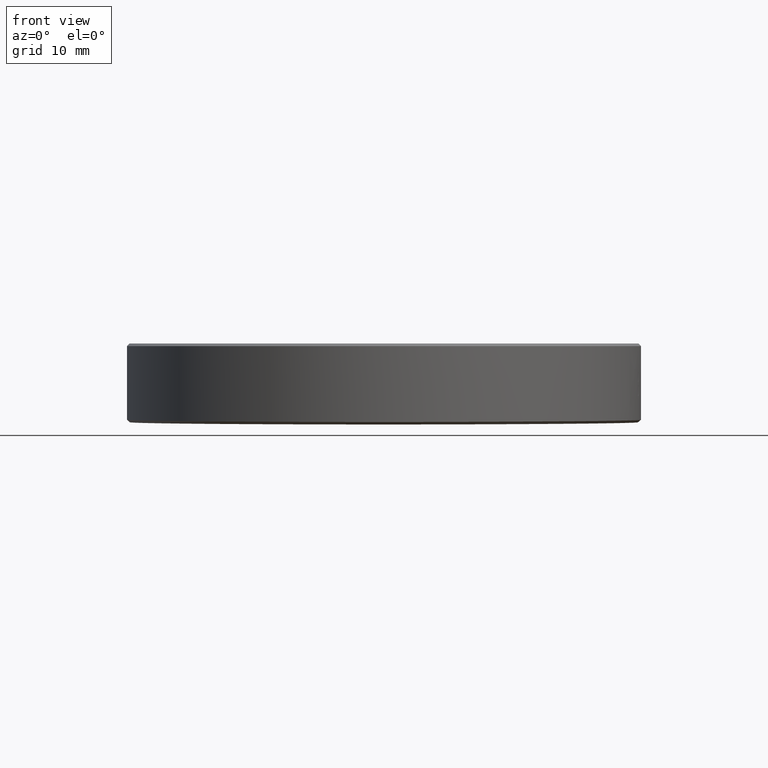
[diagram: clean part render]
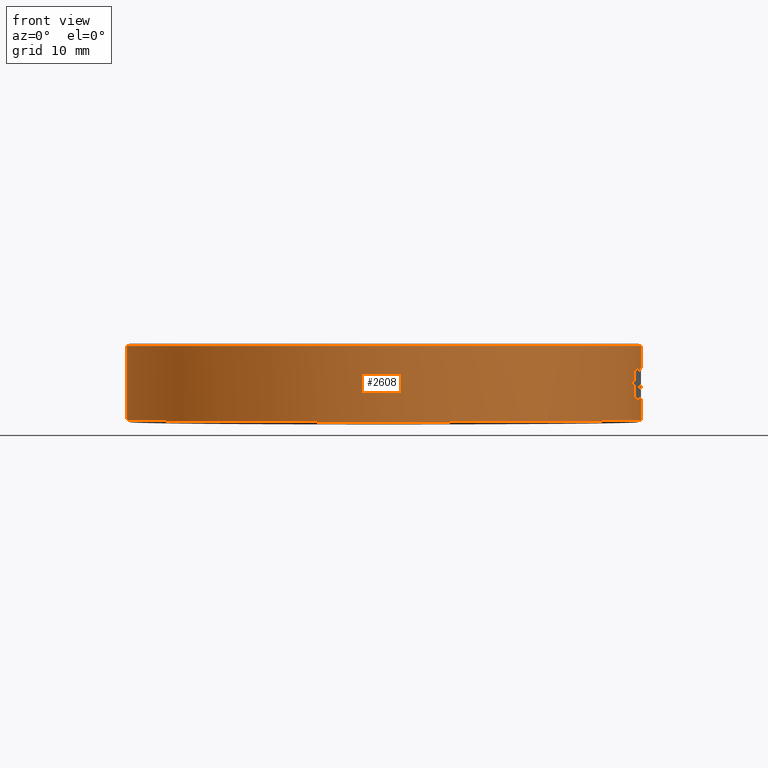
[diagram: same view with one face highlighted and labeled with its STEP entity id]
A machine part, front view. The second image highlights one B-rep face of the part: STEP entity #2608.
In plain terms, the highlighted cylindrical surface (partial cylindrical patch) has radius 25.4 mm, axis along (-0, -0, -1).
Its self-contained STEP definition (entity closure, byte-faithful):
#1 = CARTESIAN_POINT ( 'NONE',  ( 25.16972420791624300, -3.413521966920785900, -1.499134090956274000 ) ) ;
#2 = CARTESIAN_POINT ( 'NONE',  ( 25.17845359468357800, -3.347802632927792600, -1.496825502805402500 ) ) ;
#8 = CIRCLE ( 'NONE', #10, 25.40000000000000200 ) ;
#10 = AXIS2_PLACEMENT_3D ( 'NONE', #2665, #2668, #2667 ) ;
#11 = CARTESIAN_POINT ( 'NONE',  ( 25.18508550856175500, -3.297192281566599700, -1.492839781343766800 ) ) ;
#125 = CARTESIAN_POINT ( 'NONE',  ( 25.18584672184366000, -3.291374226179209400, -1.492368658260956100 ) ) ;
#200 = VERTEX_POINT ( 'NONE', #426 ) ;
#207 = EDGE_CURVE ( 'NONE', #2336, #200, #325, .T. ) ;
#265 = CARTESIAN_POINT ( 'NONE',  ( 25.39659566624369400, -0.4158468051243345800, -0.2638221153846223600 ) ) ;
#299 = B_SPLINE_CURVE_WITH_KNOTS ( 'NONE', 3,
 ( #460, #459, #458, #457, #456, #455, #454, #453, #452, #451, #450, #449, #448, #447, #446, #445, #444, #443, #442, #441, #440, #439, #438, #437, #436, #435, #434, #433, #432, #431, #430, #429, #489 ),
 .UNSPECIFIED., .F., .F.,
 ( 4, 1, 1, 2, 2, 1, 2, 2, 2, 2, 2, 2, 2, 2, 1, 1, 2, 2, 4 ),
 ( 0.0000000000000000000, 0.06250000000000018000, 0.09375000000000012500, 0.1093750000000001800, 0.1250000000000002200, 0.1875000000000004700, 0.2187500000000005000, 0.2500000000000005000, 0.3750000000000003300, 0.4375000000000001700, 0.4999999999999999400, 0.5624999999999997800, 0.6249999999999995600, 0.7499999999999991100, 0.8124999999999994400, 0.8437499999999994400, 0.8593749999999995600, 0.8749999999999997800, 1.000000000000000000 ),
 .UNSPECIFIED. ) ;
#302 = CARTESIAN_POINT ( 'NONE',  ( 25.24980767133094900, -2.758254117310173600, 0.2051739180548567400 ) ) ;
#303 = CARTESIAN_POINT ( 'NONE',  ( 25.25275329338526800, -2.731122424428848100, 0.2294094685936126100 ) ) ;
#304 = CARTESIAN_POINT ( 'NONE',  ( 25.25788077821470500, -2.683288502433208900, 0.2790821397834155100 ) ) ;
#305 = CARTESIAN_POINT ( 'NONE',  ( 25.26017535857474500, -2.661564652996522500, 0.3053149900429277300 ) ) ;
#306 = CARTESIAN_POINT ( 'NONE',  ( 25.26426019074519400, -2.622506923223350200, 0.3605737198911724300 ) ) ;
#307 = CARTESIAN_POINT ( 'NONE',  ( 25.26626172644046900, -2.603126226173678100, 0.3923056576153274300 ) ) ;
#308 = CARTESIAN_POINT ( 'NONE',  ( 25.26946875501134200, -2.571808044526027600, 0.4538682290284600800 ) ) ;
#309 = CARTESIAN_POINT ( 'NONE',  ( 25.27079876290515500, -2.558679991130862000, 0.4853832709899779100 ) ) ;
#310 = CARTESIAN_POINT ( 'NONE',  ( 25.27240127502647800, -2.542786295996064100, 0.5337564683146828200 ) ) ;
#311 = CARTESIAN_POINT ( 'NONE',  ( 25.27294473897424300, -2.537376862100797000, 0.5523712143966513800 ) ) ;
#312 = CARTESIAN_POINT ( 'NONE',  ( 25.27377005914901900, -2.529142960932165200, 0.5860359009757645200 ) ) ;
#313 = CARTESIAN_POINT ( 'NONE',  ( 25.27409909807795800, -2.525850536212825000, 0.6025100913949578100 ) ) ;
#314 = CARTESIAN_POINT ( 'NONE',  ( 25.27440707878672300, -2.522765783856638900, 0.6226551383309956200 ) ) ;
#315 = CARTESIAN_POINT ( 'NONE',  ( 25.27443231155841400, -2.522512934358825300, 0.6245649955477110500 ) ) ;
#320 = CARTESIAN_POINT ( 'NONE',  ( 25.27451551955824600, -2.521679088854225500, 0.6310449161689655200 ) ) ;
#321 = CARTESIAN_POINT ( 'NONE',  ( 25.27463671242380300, -2.520464275239881100, 0.6413058511181787300 ) ) ;
#322 = CARTESIAN_POINT ( 'NONE',  ( 25.27489419814765600, -2.517881396270505300, 0.6690354107876656000 ) ) ;
#323 = CARTESIAN_POINT ( 'NONE',  ( 25.27507165088098500, -2.516098973747352900, 0.6992962529980620800 ) ) ;
#324 = CARTESIAN_POINT ( 'NONE',  ( 25.27517081216428400, -2.515102466286153400, 0.7223557692307620600 ) ) ;
#325 = B_SPLINE_CURVE_WITH_KNOTS ( 'NONE', 3,
 ( #324, #323, #322, #321, #320, #315, #314, #313, #312, #311, #310, #309, #308, #307, #306, #305, #304, #303, #302, #365, #364, #363, #362, #361, #360, #359, #358, #357 ),
 .UNSPECIFIED., .F., .F.,
 ( 4, 1, 1, 2, 2, 2, 2, 2, 2, 2, 2, 1, 1, 2, 2, 4 ),
 ( 0.0000000000000000000, 0.06250000000000084700, 0.09375000000000129100, 0.1093750000000015100, 0.1250000000000017200, 0.1875000000000018000, 0.2500000000000019400, 0.3750000000000017200, 0.5000000000000015500, 0.6250000000000013300, 0.7500000000000012200, 0.8125000000000017800, 0.8437500000000020000, 0.8593750000000021100, 0.8750000000000022200, 1.000000000000000000 ),
 .UNSPECIFIED. ) ;
#357 = CARTESIAN_POINT ( 'NONE',  ( 25.22663369621057000, -2.962592168560056900, 0.07692307692306991900 ) ) ;
#358 = CARTESIAN_POINT ( 'NONE',  ( 25.23145421343916100, -2.921545201771035500, 0.09786233158586905800 ) ) ;
#359 = CARTESIAN_POINT ( 'NONE',  ( 25.23493485836685200, -2.891100306917239800, 0.1141458948661732000 ) ) ;
#360 = CARTESIAN_POINT ( 'NONE',  ( 25.23747286680192300, -2.868792345348214000, 0.1272272507512083600 ) ) ;
#361 = CARTESIAN_POINT ( 'NONE',  ( 25.23803755168710000, -2.863821635910130900, 0.1301830837643401000 ) ) ;
#362 = CARTESIAN_POINT ( 'NONE',  ( 25.23887484516224000, -2.856433155687637900, 0.1346797469418540600 ) ) ;
#363 = CARTESIAN_POINT ( 'NONE',  ( 25.24012141984857700, -2.845411330366942200, 0.1415120878852813800 ) ) ;
#364 = CARTESIAN_POINT ( 'NONE',  ( 25.24296509563524500, -2.820120073874508500, 0.1580656399933697600 ) ) ;
#365 = CARTESIAN_POINT ( 'NONE',  ( 25.24529300826559500, -2.799172954737050700, 0.1733025530690333600 ) ) ;
#368 = AXIS2_PLACEMENT_3D ( 'NONE', #486, #485, #484 ) ;
#375 = CIRCLE ( 'NONE', #368, 25.39999999999999100 ) ;
#426 = CARTESIAN_POINT ( 'NONE',  ( 25.22663369621057000, -2.962592168560056900, 0.07692307692306991900 ) ) ;
#429 = CARTESIAN_POINT ( 'NONE',  ( 25.38595016554645400, -0.8472999596968839900, -1.190311585917262600 ) ) ;
#430 = CARTESIAN_POINT ( 'NONE',  ( 25.38414178104690000, -0.8981119654440458100, -1.186810181384504900 ) ) ;
#431 = CARTESIAN_POINT ( 'NONE',  ( 25.38267457884017400, -0.9380036767285211400, -1.181177640875041600 ) ) ;
#432 = CARTESIAN_POINT ( 'NONE',  ( 25.38236750942727600, -0.9462873251303181000, -1.179940361126021300 ) ) ;
#433 = CARTESIAN_POINT ( 'NONE',  ( 25.38189260517922500, -0.9589410119914065800, -1.177883059316583900 ) ) ;
#434 = CARTESIAN_POINT ( 'NONE',  ( 25.38117548294931700, -0.9778591683503096200, -1.174602922376394500 ) ) ;
#435 = CARTESIAN_POINT ( 'NONE',  ( 25.37946981029402900, -1.021564915683602000, -1.165589979933733300 ) ) ;
#436 = CARTESIAN_POINT ( 'NONE',  ( 25.37795560248701300, -1.058278501631901200, -1.155534389984785900 ) ) ;
#437 = CARTESIAN_POINT ( 'NONE',  ( 25.37486622218606800, -1.130707743598296200, -1.132316262470382400 ) ) ;
#438 = CARTESIAN_POINT ( 'NONE',  ( 25.37273545810423400, -1.177446023801622200, -1.112561713567147900 ) ) ;
#439 = CARTESIAN_POINT ( 'NONE',  ( 25.36943842619684400, -1.245839026874612700, -1.076321598931421700 ) ) ;
#440 = CARTESIAN_POINT ( 'NONE',  ( 25.36826213503329100, -1.269538779962858600, -1.062400990153970400 ) ) ;
#441 = CARTESIAN_POINT ( 'NONE',  ( 25.36610020248721400, -1.312026288978955600, -1.034437873806905100 ) ) ;
#442 = CARTESIAN_POINT ( 'NONE',  ( 25.36506059262111300, -1.331933557106437700, -1.019802159180804600 ) ) ;
#443 = CARTESIAN_POINT ( 'NONE',  ( 25.36308295132020500, -1.369075992170466500, -0.9892224170234688000 ) ) ;
#444 = CARTESIAN_POINT ( 'NONE',  ( 25.36204027368267700, -1.388238279880121400, -0.9713468201180295300 ) ) ;
#445 = CARTESIAN_POINT ( 'NONE',  ( 25.36014822713879700, -1.422383303886547400, -0.9348391325447397100 ) ) ;
#446 = CARTESIAN_POINT ( 'NONE',  ( 25.35925127112535900, -1.438259782251791500, -0.9154712155617017500 ) ) ;
#447 = CARTESIAN_POINT ( 'NONE',  ( 25.35672780955332300, -1.482302170776817400, -0.8540252450234034900 ) ) ;
#448 = CARTESIAN_POINT ( 'NONE',  ( 25.35526972472395000, -1.506881080659021600, -0.8086049718789618500 ) ) ;
#449 = CARTESIAN_POINT ( 'NONE',  ( 25.35377952659278100, -1.531629297422075300, -0.7462592644664406400 ) ) ;
#450 = CARTESIAN_POINT ( 'NONE',  ( 25.35354503909172400, -1.535503477975573000, -0.7357939390572357800 ) ) ;
#451 = CARTESIAN_POINT ( 'NONE',  ( 25.35304548866077200, -1.543729714045028100, -0.7122485360848013200 ) ) ;
#452 = CARTESIAN_POINT ( 'NONE',  ( 25.35232943049053500, -1.555471497416552700, -0.6763194955454237000 ) ) ;
#453 = CARTESIAN_POINT ( 'NONE',  ( 25.35171576354205700, -1.565420722069347700, -0.6385576467638686100 ) ) ;
#454 = CARTESIAN_POINT ( 'NONE',  ( 25.35126360680208900, -1.572716018696201300, -0.6060712126446974300 ) ) ;
#455 = CARTESIAN_POINT ( 'NONE',  ( 25.35123166321256600, -1.573230478440145000, -0.6035467499298840000 ) ) ;
#456 = CARTESIAN_POINT ( 'NONE',  ( 25.35110894451645100, -1.575206736724525700, -0.5938121830001313900 ) ) ;
#457 = CARTESIAN_POINT ( 'NONE',  ( 25.35092452239254600, -1.578173863339440400, -0.5784975152143987400 ) ) ;
#458 = CARTESIAN_POINT ( 'NONE',  ( 25.35049178879529200, -1.585116332530122500, -0.5377735686432868500 ) ) ;
#459 = CARTESIAN_POINT ( 'NONE',  ( 25.35011671057479900, -1.591099887768656200, -0.4943135200319320200 ) ) ;
#460 = CARTESIAN_POINT ( 'NONE',  ( 25.34986478714989400, -1.595103530564040200, -0.4615384615384689500 ) ) ;
#461 = CARTESIAN_POINT ( 'NONE',  ( 24.26122366544216600, -7.520174616017170500, -1.500000000000007300 ) ) ;
#462 = CIRCLE ( 'NONE', #488, 25.39999999999999900 ) ;
#465 = DIRECTION ( 'NONE',  ( 0.9744857516928126000, -0.2244493701209562500, 0.0000000000000000000 ) ) ;
#466 = DIRECTION ( 'NONE',  ( -0.0000000000000000000, -0.0000000000000000000, -1.000000000000000000 ) ) ;
#467 = CARTESIAN_POINT ( 'NONE',  ( 0.0000000000000000000, 0.0000000000000000000, -1.500000000000007300 ) ) ;
#468 = AXIS2_PLACEMENT_3D ( 'NONE', #467, #466, #465 ) ;
#469 = CIRCLE ( 'NONE', #468, 25.39999999999999900 ) ;
#470 = CARTESIAN_POINT ( 'NONE',  ( 25.15808253350534700, -3.497267967618886300, -1.500000000000007300 ) ) ;
#471 = CARTESIAN_POINT ( 'NONE',  ( 25.28633534186381500, -2.400259356571463600, -0.6406250000000075500 ) ) ;
#472 = DIRECTION ( 'NONE',  ( 0.9599650687318792600, -0.2801197365674158400, 0.0000000000000000000 ) ) ;
#473 = DIRECTION ( 'NONE',  ( -0.0000000000000000000, -0.0000000000000000000, -1.000000000000000000 ) ) ;
#474 = CARTESIAN_POINT ( 'NONE',  ( 0.0000000000000000000, 0.0000000000000000000, -0.07692307692308379700 ) ) ;
#475 = CARTESIAN_POINT ( 'NONE',  ( 24.97834387067267400, -4.608941036553720700, 1.499999999999992700 ) ) ;
#476 = DIRECTION ( 'NONE',  ( 0.0000000000000000000, 0.0000000000000000000, -1.000000000000000000 ) ) ;
#477 = VECTOR ( 'NONE', #476, 1000.000000000000000 ) ;
#478 = CARTESIAN_POINT ( 'NONE',  ( 24.84345952442637500, -5.287959801113110800, 1.499999999999992700 ) ) ;
#479 = DIRECTION ( 'NONE',  ( 0.0000000000000000000, 0.0000000000000000000, 1.000000000000000000 ) ) ;
#480 = VECTOR ( 'NONE', #479, 1000.000000000000000 ) ;
#481 = CARTESIAN_POINT ( 'NONE',  ( 24.75193809299743800, -5.701014001072288700, -1.500000000000007300 ) ) ;
#482 = LINE ( 'NONE', #481, #480 ) ;
#483 = LINE ( 'NONE', #478, #477 ) ;
#484 = DIRECTION ( 'NONE',  ( 0.9968417555027017100, -0.07941356613508782100, 0.0000000000000000000 ) ) ;
#485 = DIRECTION ( 'NONE',  ( -0.0000000000000000000, -0.0000000000000000000, -1.000000000000000000 ) ) ;
#486 = CARTESIAN_POINT ( 'NONE',  ( 0.0000000000000000000, 0.0000000000000000000, -0.4615384615384689500 ) ) ;
#487 = CARTESIAN_POINT ( 'NONE',  ( 24.75193809299744200, -5.701014001072281600, -0.07692307692308379700 ) ) ;
#488 = AXIS2_PLACEMENT_3D ( 'NONE', #474, #473, #472 ) ;
#489 = CARTESIAN_POINT ( 'NONE',  ( 25.38798615264590500, -0.7811268226478076400, -1.192307692307700100 ) ) ;
#490 = CARTESIAN_POINT ( 'NONE',  ( 25.21399930094601800, -3.068276514905727400, -1.460427734102991600 ) ) ;
#491 = CARTESIAN_POINT ( 'NONE',  ( 25.21723212036282300, -3.041669659010091100, -1.454565725597719100 ) ) ;
#492 = CARTESIAN_POINT ( 'NONE',  ( 25.22444038789180400, -2.981548974465777000, -1.439325600971641700 ) ) ;
#493 = CARTESIAN_POINT ( 'NONE',  ( 25.23006564384132800, -2.933383219291668900, -1.423584743097084300 ) ) ;
#494 = CARTESIAN_POINT ( 'NONE',  ( 25.24063013713533700, -2.841546813866177200, -1.388532502135509100 ) ) ;
#495 = CARTESIAN_POINT ( 'NONE',  ( 25.24676004649729300, -2.786316288379897500, -1.360403641211178800 ) ) ;
#496 = CARTESIAN_POINT ( 'NONE',  ( 25.25342910632590300, -2.724788354769987800, -1.319291689701664400 ) ) ;
#497 = CARTESIAN_POINT ( 'NONE',  ( 25.25503164168628700, -2.709897999442977500, -1.308592734636988300 ) ) ;
#498 = CARTESIAN_POINT ( 'NONE',  ( 25.25780359615867700, -2.683938875577174300, -1.288249109606858500 ) ) ;
#499 = CARTESIAN_POINT ( 'NONE',  ( 25.26179904538871300, -2.646237228488770300, -1.256311392398112000 ) ) ;
#500 = CARTESIAN_POINT ( 'NONE',  ( 25.26532412105357000, -2.612248649574671100, -1.220106836198711100 ) ) ;
#501 = CARTESIAN_POINT ( 'NONE',  ( 25.26855564997258000, -2.580737656468043500, -1.181057720672206200 ) ) ;
#502 = CARTESIAN_POINT ( 'NONE',  ( 25.26944579393396100, -2.572002219873691200, -1.169423981179580600 ) ) ;
#503 = CARTESIAN_POINT ( 'NONE',  ( 25.27131879151303600, -2.553533373449862000, -1.143302368274262900 ) ) ;
#504 = CARTESIAN_POINT ( 'NONE',  ( 25.27403481080201800, -2.526600449974796300, -1.102648447345762700 ) ) ;
#505 = CARTESIAN_POINT ( 'NONE',  ( 25.27647796280246300, -2.501979379101514100, -1.057580021705693200 ) ) ;
#506 = CARTESIAN_POINT ( 'NONE',  ( 25.27950498707608400, -2.471207523840036400, -0.9935647833308715000 ) ) ;
#507 = CARTESIAN_POINT ( 'NONE',  ( 25.28070270949388000, -2.458900429140179300, -0.9637299001196921700 ) ) ;
#508 = CARTESIAN_POINT ( 'NONE',  ( 25.28282129182508300, -2.437020379864146800, -0.9012799127012184300 ) ) ;
#509 = CARTESIAN_POINT ( 'NONE',  ( 25.28368599427282600, -2.428018305891327600, -0.8698524239853542300 ) ) ;
#510 = CARTESIAN_POINT ( 'NONE',  ( 25.28503864555296200, -2.413891265907419600, -0.8065924565403684900 ) ) ;
#511 = CARTESIAN_POINT ( 'NONE',  ( 25.28555773154247200, -2.408439259495502900, -0.7726907849406861000 ) ) ;
#512 = CARTESIAN_POINT ( 'NONE',  ( 25.28588544171971400, -2.404994298552212100, -0.7359147081837988900 ) ) ;
#513 = CARTESIAN_POINT ( 'NONE',  ( 25.28589766475871100, -2.404865765275785900, -0.7343095402915556000 ) ) ;
#514 = CARTESIAN_POINT ( 'NONE',  ( 25.28594467516237600, -2.404371424358783000, -0.7281001557282396100 ) ) ;
#515 = CARTESIAN_POINT ( 'NONE',  ( 25.28601356638816400, -2.403646878828273000, -0.7182680929629573500 ) ) ;
#516 = CARTESIAN_POINT ( 'NONE',  ( 25.28616295213683100, -2.402075034478654100, -0.6917007117351483500 ) ) ;
#517 = CARTESIAN_POINT ( 'NONE',  ( 25.28627155559835800, -2.400931334328402700, -0.6627128396390480300 ) ) ;
#518 = CARTESIAN_POINT ( 'NONE',  ( 25.28633534186381500, -2.400259356571463600, -0.6406250000000075500 ) ) ;
#519 = B_SPLINE_CURVE_WITH_KNOTS ( 'NONE', 3,
 ( #518, #517, #516, #515, #514, #513, #512, #511, #510, #509, #508, #507, #506, #505, #504, #503, #502, #501, #500, #499, #498, #497, #496, #495, #494, #493, #492, #491, #490, #2279, #2362, #2379, #2378, #2377, #2548, #2486, #125, #11, #2, #1, #470 ),
 .UNSPECIFIED., .F., .F.,
 ( 4, 1, 1, 2, 2, 2, 2, 2, 1, 2, 2, 1, 2, 2, 2, 1, 1, 2, 2, 1, 1, 1, 2, 2, 4 ),
 ( 0.0000000000000000000, 0.03124999999999833500, 0.04687499999999764100, 0.05468749999999739100, 0.06249999999999714100, 0.1249999999999964500, 0.1874999999999957300, 0.2499999999999950000, 0.3124999999999942800, 0.3437499999999941200, 0.3749999999999939500, 0.4374999999999940000, 0.4687499999999937800, 0.4999999999999935600, 0.6249999999999907900, 0.6874999999999897900, 0.7187499999999892300, 0.7343749999999889000, 0.7499999999999886800, 0.8124999999999876800, 0.8437499999999876800, 0.8593749999999871200, 0.8671874999999870100, 0.8749999999999867900, 1.000000000000000000 ),
 .UNSPECIFIED. ) ;
#520 = DIRECTION ( 'NONE',  ( 0.9833993649871131100, -0.1814543715178630100, 0.0000000000000000000 ) ) ;
#521 = DIRECTION ( 'NONE',  ( -0.0000000000000000000, -0.0000000000000000000, -1.000000000000000000 ) ) ;
#522 = CARTESIAN_POINT ( 'NONE',  ( 0.0000000000000000000, 0.0000000000000000000, -1.500000000000007300 ) ) ;
#523 = AXIS2_PLACEMENT_3D ( 'NONE', #522, #521, #520 ) ;
#524 = CARTESIAN_POINT ( 'NONE',  ( 25.38135171765641800, -0.9733775169868182900, -1.528899729365340400 ) ) ;
#525 = CARTESIAN_POINT ( 'NONE',  ( 25.38202152400419800, -0.9556980602772455800, -1.530586581991310000 ) ) ;
#526 = CARTESIAN_POINT ( 'NONE',  ( 25.38345005828685800, -0.9169725000718310600, -1.533729707451029700 ) ) ;
#527 = CARTESIAN_POINT ( 'NONE',  ( 25.38413207506349400, -0.8978826710179477200, -1.534965582454902900 ) ) ;
#528 = CARTESIAN_POINT ( 'NONE',  ( 25.38494659721912300, -0.8743617170723735300, -1.536090816552258900 ) ) ;
#529 = CARTESIAN_POINT ( 'NONE',  ( 25.38501893880772900, -0.8722540645357297300, -1.536176123945030200 ) ) ;
#530 = CARTESIAN_POINT ( 'NONE',  ( 25.38527186056535400, -0.8648619785345690300, -1.536467670126970400 ) ) ;
#531 = CARTESIAN_POINT ( 'NONE',  ( 25.38566866551058300, -0.8531935986066566700, -1.536886181369577600 ) ) ;
#532 = CARTESIAN_POINT ( 'NONE',  ( 25.38671090374174700, -0.8219054427278947900, -1.537731051390209800 ) ) ;
#533 = CARTESIAN_POINT ( 'NONE',  ( 25.38778286762733300, -0.7881230296887370400, -1.538229529329979000 ) ) ;
#534 = CARTESIAN_POINT ( 'NONE',  ( 25.38855224667758000, -0.7625056181582735600, -1.538461538461545900 ) ) ;
#535 = CARTESIAN_POINT ( 'NONE',  ( 24.38311274578973100, -7.115041308812362100, 1.499999999999992700 ) ) ;
#536 = B_SPLINE_CURVE_WITH_KNOTS ( 'NONE', 3,
 ( #534, #533, #532, #531, #530, #529, #528, #527, #526, #525, #524, #612, #611, #610, #609, #608, #607, #606, #605, #604, #603, #602, #601, #600, #599, #598, #597, #596, #595, #594, #593, #592, #591, #590, #589, #588, #587, #586, #585, #584 ),
 .UNSPECIFIED., .F., .F.,
 ( 4, 1, 1, 2, 2, 2, 2, 2, 2, 2, 2, 2, 1, 2, 2, 1, 2, 2, 1, 1, 2, 2, 4 ),
 ( 0.0000000000000000000, 0.03124999999999933400, 0.04687499999999918100, 0.05468749999999920900, 0.06249999999999923700, 0.09374999999999916700, 0.1249999999999991100, 0.1874999999999991700, 0.2499999999999992200, 0.3749999999999991100, 0.4999999999999990000, 0.6249999999999988900, 0.6874999999999988900, 0.7187499999999990000, 0.7499999999999990000, 0.8124999999999987800, 0.8437499999999985600, 0.8749999999999983300, 0.9062499999999981100, 0.9218749999999980000, 0.9296874999999980000, 0.9374999999999981100, 1.000000000000000000 ),
 .UNSPECIFIED. ) ;
#537 = DIRECTION ( 'NONE',  ( 0.9551662860410300400, -0.2960698667723295500, 0.0000000000000000000 ) ) ;
#538 = DIRECTION ( 'NONE',  ( -0.0000000000000000000, -0.0000000000000000000, -1.000000000000000000 ) ) ;
#539 = CARTESIAN_POINT ( 'NONE',  ( 0.0000000000000000000, 0.0000000000000000000, 1.499999999999992700 ) ) ;
#540 = DIRECTION ( 'NONE',  ( 0.0000000000000000000, 0.0000000000000000000, -1.000000000000000000 ) ) ;
#541 = VECTOR ( 'NONE', #540, 1000.000000000000000 ) ;
#542 = CARTESIAN_POINT ( 'NONE',  ( 24.38311274578973100, -7.115041308812362100, 1.499999999999992700 ) ) ;
#543 = CARTESIAN_POINT ( 'NONE',  ( 25.15766863235951000, -3.500244132113419700, 1.499999999999992700 ) ) ;
#544 = DIRECTION ( 'NONE',  ( 0.9599650687318792600, -0.2801197365674158400, 0.0000000000000000000 ) ) ;
#545 = DIRECTION ( 'NONE',  ( -0.0000000000000000000, -0.0000000000000000000, -1.000000000000000000 ) ) ;
#546 = CARTESIAN_POINT ( 'NONE',  ( 0.0000000000000000000, 0.0000000000000000000, 0.2692307692307620600 ) ) ;
#547 = CIRCLE ( 'NONE', #567, 25.39999999999999900 ) ;
#548 = CARTESIAN_POINT ( 'NONE',  ( 25.33136212465047900, -1.866045087230030700, 0.4942814907502208200 ) ) ;
#549 = CARTESIAN_POINT ( 'NONE',  ( 25.33176736827161700, -1.860538589639761000, 0.4788864613628378600 ) ) ;
#550 = CARTESIAN_POINT ( 'NONE',  ( 25.33271173750146600, -1.847635751013963600, 0.4466097297016420300 ) ) ;
#551 = CARTESIAN_POINT ( 'NONE',  ( 25.33425340488339500, -1.826469629978086300, 0.3992501225379239100 ) ) ;
#552 = CARTESIAN_POINT ( 'NONE',  ( 25.33615769807241600, -1.799867000511914600, 0.3550569863584348000 ) ) ;
#553 = CARTESIAN_POINT ( 'NONE',  ( 25.34040421099653900, -1.739409930928511600, 0.2708926753117605900 ) ) ;
#554 = CARTESIAN_POINT ( 'NONE',  ( 25.34364756714829500, -1.691941593213056800, 0.2218539806266469300 ) ) ;
#555 = CARTESIAN_POINT ( 'NONE',  ( 25.34906012041607000, -1.608084451202169500, 0.1562618935322835400 ) ) ;
#556 = CARTESIAN_POINT ( 'NONE',  ( 25.35074758096123300, -1.581311570669924800, 0.1380289811930547100 ) ) ;
#557 = CARTESIAN_POINT ( 'NONE',  ( 25.35286343444276000, -1.546716039129629700, 0.1170640579889410500 ) ) ;
#558 = CARTESIAN_POINT ( 'NONE',  ( 25.35293959680104000, -1.545464856519869900, 0.1163262161670945600 ) ) ;
#559 = CARTESIAN_POINT ( 'NONE',  ( 25.35327931829588300, -1.539881693588778200, 0.1130243293384313500 ) ) ;
#560 = CARTESIAN_POINT ( 'NONE',  ( 25.35381720364788900, -1.531018907200804500, 0.1078368900001885500 ) ) ;
#561 = B_SPLINE_CURVE_WITH_KNOTS ( 'NONE', 3,
 ( #635, #634, #633, #632, #631, #630, #629, #628, #627, #626, #625, #624, #623, #622, #621, #620, #619, #618, #617 ),
 .UNSPECIFIED., .F., .F.,
 ( 4, 2, 2, 2, 1, 2, 2, 2, 2, 4 ),
 ( 0.0000000000000000000, 0.07318765639225101300, 0.1097814845883766100, 0.1280783986864395300, 0.1463753127845024100, 0.2195629691767538000, 0.2927506255690052700, 0.4391259383535082700, 0.5123135947457597700, 0.5855012511380112100 ),
 .UNSPECIFIED. ) ;
#562 = DIRECTION ( 'NONE',  ( 0.9744857516928126000, -0.2244493701209562500, 0.0000000000000000000 ) ) ;
#563 = DIRECTION ( 'NONE',  ( -0.0000000000000000000, -0.0000000000000000000, -1.000000000000000000 ) ) ;
#564 = LINE ( 'NONE', #542, #541 ) ;
#565 = AXIS2_PLACEMENT_3D ( 'NONE', #539, #538, #537 ) ;
#566 = CIRCLE ( 'NONE', #565, 25.40000000000000200 ) ;
#567 = AXIS2_PLACEMENT_3D ( 'NONE', #546, #545, #544 ) ;
#568 = DIRECTION ( 'NONE',  ( 0.0000000000000000000, 0.0000000000000000000, 1.000000000000000000 ) ) ;
#569 = VECTOR ( 'NONE', #568, 1000.000000000000000 ) ;
#570 = CARTESIAN_POINT ( 'NONE',  ( 24.75193809299743800, -5.701014001072288700, 0.2692307692307620600 ) ) ;
#571 = LINE ( 'NONE', #570, #569 ) ;
#572 = AXIS2_PLACEMENT_3D ( 'NONE', #683, #563, #562 ) ;
#573 = CARTESIAN_POINT ( 'NONE',  ( 24.75193809299743800, -5.701014001072288700, 1.499999999999992700 ) ) ;
#574 = CARTESIAN_POINT ( 'NONE',  ( 24.84345952442637900, -5.287959801113105500, -1.500000000000007300 ) ) ;
#575 = DIRECTION ( 'NONE',  ( -0.0000000000000000000, -0.0000000000000000000, -1.000000000000000000 ) ) ;
#576 = VECTOR ( 'NONE', #575, 1000.000000000000000 ) ;
#577 = CARTESIAN_POINT ( 'NONE',  ( -25.39999999999999900, 0.0000000000000000000, 4.000000000000000000 ) ) ;
#578 = CARTESIAN_POINT ( 'NONE',  ( 25.35526681195067800, -1.506922566098925600, 0.09409060121087754700 ) ) ;
#579 = CARTESIAN_POINT ( 'NONE',  ( 25.35682937966683800, -1.480410889814938800, 0.07949275881991216300 ) ) ;
#580 = CARTESIAN_POINT ( 'NONE',  ( 25.35799704652090700, -1.460132113418778100, 0.06850961538460831300 ) ) ;
#581 = CARTESIAN_POINT ( 'NONE',  ( 25.15808253350534700, -3.497267967618886300, -1.500000000000007300 ) ) ;
#582 = B_SPLINE_CURVE_WITH_KNOTS ( 'NONE', 3,
 ( #580, #579, #578, #560, #559, #558, #557, #556, #555, #554, #553, #552, #551, #550, #549, #548, #644, #643, #642, #641, #640, #639, #638, #637 ),
 .UNSPECIFIED., .F., .F.,
 ( 4, 1, 1, 2, 2, 2, 2, 1, 2, 2, 1, 2, 2, 4 ),
 ( 0.0000000000000000000, 0.06249999999999902900, 0.09374999999999821000, 0.1093749999999982100, 0.1249999999999982000, 0.2499999999999988900, 0.4999999999999997800, 0.6250000000000006700, 0.6875000000000010000, 0.7500000000000012200, 0.8125000000000014400, 0.8437500000000014400, 0.8750000000000013300, 1.000000000000000000 ),
 .UNSPECIFIED. ) ;
#583 = CARTESIAN_POINT ( 'NONE',  ( 25.27517081216428400, -2.515102466286153400, 0.7223557692307620600 ) ) ;
#584 = CARTESIAN_POINT ( 'NONE',  ( 25.31978058976861600, -2.017104579831229900, -0.4615384615384689500 ) ) ;
#585 = CARTESIAN_POINT ( 'NONE',  ( 25.31993409267211300, -2.015177728900820600, -0.5104052034527673000 ) ) ;
#586 = CARTESIAN_POINT ( 'NONE',  ( 25.32014497528708200, -2.012528229315478300, -0.5491884821588617300 ) ) ;
#587 = CARTESIAN_POINT ( 'NONE',  ( 25.32044600476074700, -2.008734501818773700, -0.5814757745939881400 ) ) ;
#588 = CARTESIAN_POINT ( 'NONE',  ( 25.32050878422021600, -2.007943057344326200, -0.5879828619472123900 ) ) ;
#589 = CARTESIAN_POINT ( 'NONE',  ( 25.32061039670809800, -2.006661294645458100, -0.5979769085747449500 ) ) ;
#590 = CARTESIAN_POINT ( 'NONE',  ( 25.32076819552570500, -2.004669857238088800, -0.6128674608531168300 ) ) ;
#591 = CARTESIAN_POINT ( 'NONE',  ( 25.32117393981425800, -1.999541607491067000, -0.6469084591954990000 ) ) ;
#592 = CARTESIAN_POINT ( 'NONE',  ( 25.32158567412804500, -1.994320396663150200, -0.6748802458195639600 ) ) ;
#593 = CARTESIAN_POINT ( 'NONE',  ( 25.32219059462854500, -1.986624873009142300, -0.7111037729137651400 ) ) ;
#594 = CARTESIAN_POINT ( 'NONE',  ( 25.32258188915390200, -1.981633805338910200, -0.7321676194849003900 ) ) ;
#595 = CARTESIAN_POINT ( 'NONE',  ( 25.32337655493313000, -1.971452745675169800, -0.7703720073908562100 ) ) ;
#596 = CARTESIAN_POINT ( 'NONE',  ( 25.32466865521286100, -1.954838864302494100, -0.8267073670375083600 ) ) ;
#597 = CARTESIAN_POINT ( 'NONE',  ( 25.32625363408622800, -1.934197533719013200, -0.8801290600473178300 ) ) ;
#598 = CARTESIAN_POINT ( 'NONE',  ( 25.32802076072609100, -1.910870260798910100, -0.9316083086325650500 ) ) ;
#599 = CARTESIAN_POINT ( 'NONE',  ( 25.32874203031920900, -1.901292573103413400, -0.9514610722147603900 ) ) ;
#600 = CARTESIAN_POINT ( 'NONE',  ( 25.33012590516257800, -1.882766027845302400, -0.9872114263710684000 ) ) ;
#601 = CARTESIAN_POINT ( 'NONE',  ( 25.33227399410744600, -1.853803020237008400, -1.039574798651229600 ) ) ;
#602 = CARTESIAN_POINT ( 'NONE',  ( 25.33462722785200300, -1.821319619735265200, -1.088151694068485400 ) ) ;
#603 = CARTESIAN_POINT ( 'NONE',  ( 25.33957116818150700, -1.751656569786194800, -1.180256849085788800 ) ) ;
#604 = CARTESIAN_POINT ( 'NONE',  ( 25.34318550122857900, -1.698952893224439300, -1.234928771341046800 ) ) ;
#605 = CARTESIAN_POINT ( 'NONE',  ( 25.35081664656630500, -1.581008423524233200, -1.330809587005676900 ) ) ;
#606 = CARTESIAN_POINT ( 'NONE',  ( 25.35462166169687100, -1.519200282807508000, -1.369835770547770400 ) ) ;
#607 = CARTESIAN_POINT ( 'NONE',  ( 25.36253912781660300, -1.380731000970934200, -1.437513161187073300 ) ) ;
#608 = CARTESIAN_POINT ( 'NONE',  ( 25.36655271025908900, -1.305597897851386000, -1.464922122928357100 ) ) ;
#609 = CARTESIAN_POINT ( 'NONE',  ( 25.37241984321098800, -1.184042595576773300, -1.496390965172730300 ) ) ;
#610 = CARTESIAN_POINT ( 'NONE',  ( 25.37416971508704900, -1.145749167986320800, -1.504723902379935300 ) ) ;
#611 = CARTESIAN_POINT ( 'NONE',  ( 25.37723683357369700, -1.075676800294740800, -1.516543094890634200 ) ) ;
#612 = CARTESIAN_POINT ( 'NONE',  ( 25.37877956845196800, -1.038972011051607400, -1.521509721330198900 ) ) ;
#613 = CARTESIAN_POINT ( 'NONE',  ( 25.39635701999194900, -0.4304214087716539100, -0.2578405432399144500 ) ) ;
#614 = CARTESIAN_POINT ( 'NONE',  ( 25.39659566624369400, -0.4158468051243345800, -0.2638221153846223600 ) ) ;
#615 = CIRCLE ( 'NONE', #523, 25.40000000000000200 ) ;
#616 = B_SPLINE_CURVE_WITH_KNOTS ( 'NONE', 3,
 ( #614, #613, #682, #681, #680, #679, #678, #677, #676, #675, #674, #673, #672, #671, #670, #669, #668, #667, #666, #665, #664, #663, #662, #661, #660, #659, #658, #657, #656, #655, #654, #653, #652, #651, #650, #649, #648, #647, #646, #645 ),
 .UNSPECIFIED., .F., .F.,
 ( 4, 1, 1, 1, 1, 2, 2, 2, 1, 1, 1, 2, 2, 2, 2, 1, 2, 2, 2, 1, 1, 2, 2, 2, 4 ),
 ( 0.0000000000000000000, 0.06249999999999637800, 0.09374999999999449100, 0.1093749999999936600, 0.1171874999999933200, 0.1210937499999933200, 0.1249999999999933400, 0.1874999999999927300, 0.2187499999999924200, 0.2343749999999923100, 0.2421874999999923100, 0.2460937499999923900, 0.2499999999999924500, 0.3749999999999919500, 0.4374999999999918400, 0.4687499999999921200, 0.4843749999999923900, 0.4999999999999926700, 0.6249999999999941200, 0.6874999999999952300, 0.7187499999999961100, 0.7343749999999964500, 0.7499999999999966700, 0.8749999999999983300, 1.000000000000000000 ),
 .UNSPECIFIED. ) ;
#617 = CARTESIAN_POINT ( 'NONE',  ( 25.39999999999999900, -8.169263060357313000E-015, 1.248470533325261300 ) ) ;
#618 = CARTESIAN_POINT ( 'NONE',  ( 25.39999999999999500, -0.02759749445809925000, 1.275708991073159600 ) ) ;
#619 = CARTESIAN_POINT ( 'NONE',  ( 25.39995523971079500, -0.05711383228640374400, 1.300818946597879900 ) ) ;
#620 = CARTESIAN_POINT ( 'NONE',  ( 25.39973606290127600, -0.1199837659976183700, 1.346781853200978300 ) ) ;
#621 = CARTESIAN_POINT ( 'NONE',  ( 25.39957643363303700, -0.1502901499738637800, 1.365847353429045000 ) ) ;
#622 = CARTESIAN_POINT ( 'NONE',  ( 25.39886936154913100, -0.2484264550033401800, 1.420657695563728200 ) ) ;
#623 = CARTESIAN_POINT ( 'NONE',  ( 25.39810298100903900, -0.3200201185588638100, 1.450819563291380500 ) ) ;
#624 = CARTESIAN_POINT ( 'NONE',  ( 25.39627613498338100, -0.4366582796982088100, 1.486494824339651900 ) ) ;
#625 = CARTESIAN_POINT ( 'NONE',  ( 25.39555448066025900, -0.4767113088773502500, 1.496580553479548200 ) ) ;
#626 = CARTESIAN_POINT ( 'NONE',  ( 25.39401611164639000, -0.5526181083162039500, 1.512652008073635200 ) ) ;
#627 = CARTESIAN_POINT ( 'NONE',  ( 25.39293972273567200, -0.6004801462291602400, 1.520814980732353400 ) ) ;
#628 = CARTESIAN_POINT ( 'NONE',  ( 25.39171254630426600, -0.6488667707212139000, 1.526625845312842300 ) ) ;
#629 = CARTESIAN_POINT ( 'NONE',  ( 25.39120946682354700, -0.6682633703727923800, 1.528762022498779000 ) ) ;
#630 = CARTESIAN_POINT ( 'NONE',  ( 25.39106721206736600, -0.6736176494392699400, 1.529277239027046200 ) ) ;
#631 = CARTESIAN_POINT ( 'NONE',  ( 25.39047119618663800, -0.6958391028468211600, 1.531258576410950300 ) ) ;
#632 = CARTESIAN_POINT ( 'NONE',  ( 25.39001350962324800, -0.7124263803950936500, 1.532454869086755000 ) ) ;
#633 = CARTESIAN_POINT ( 'NONE',  ( 25.38842814627729900, -0.7675061736887667200, 1.535669950373768700 ) ) ;
#634 = CARTESIAN_POINT ( 'NONE',  ( 25.38709039225842500, -0.8113167956553260000, 1.537314942244580700 ) ) ;
#635 = CARTESIAN_POINT ( 'NONE',  ( 25.38536166348875900, -0.8622141345832506900, 1.538461538461531000 ) ) ;
#636 = CARTESIAN_POINT ( 'NONE',  ( 24.97834387067267400, -4.608941036553720700, -1.500000000000007300 ) ) ;
#637 = CARTESIAN_POINT ( 'NONE',  ( 25.32868241127036800, -1.902063960281854100, 0.7169471153846079800 ) ) ;
#638 = CARTESIAN_POINT ( 'NONE',  ( 25.32879512095435000, -1.900563070800998400, 0.6705892651097820100 ) ) ;
#639 = CARTESIAN_POINT ( 'NONE',  ( 25.32897119805661000, -1.898217133979043700, 0.6360500697027495800 ) ) ;
#640 = CARTESIAN_POINT ( 'NONE',  ( 25.32926962318339300, -1.894228337888908400, 0.6076493940287017700 ) ) ;
#641 = CARTESIAN_POINT ( 'NONE',  ( 25.32939129401649600, -1.892601126413188100, 0.5974274333741010900 ) ) ;
#642 = CARTESIAN_POINT ( 'NONE',  ( 25.32961951477962600, -1.889544279871229900, 0.5811183182221950600 ) ) ;
#643 = CARTESIAN_POINT ( 'NONE',  ( 25.33000859644324600, -1.884327125733905200, 0.5562476261318407600 ) ) ;
#644 = CARTESIAN_POINT ( 'NONE',  ( 25.33053686870831100, -1.877214239441256500, 0.5301558759539989300 ) ) ;
#645 = CARTESIAN_POINT ( 'NONE',  ( 25.35799704652090700, -1.460132113418778100, 0.06850961538460831300 ) ) ;
#646 = CARTESIAN_POINT ( 'NONE',  ( 25.36064844615986800, -1.414085469011830300, 0.04572222401772340500 ) ) ;
#647 = CARTESIAN_POINT ( 'NONE',  ( 25.36265208518485500, -1.377574576346940200, 0.03021125888715514900 ) ) ;
#648 = CARTESIAN_POINT ( 'NONE',  ( 25.36715137323278000, -1.292077286784104600, -0.002774823857581415200 ) ) ;
#649 = CARTESIAN_POINT ( 'NONE',  ( 25.36927554070453200, -1.249730183754969000, -0.01782696052495205000 ) ) ;
#650 = CARTESIAN_POINT ( 'NONE',  ( 25.37164343282606500, -1.199891766698121500, -0.03415832076060471700 ) ) ;
#651 = CARTESIAN_POINT ( 'NONE',  ( 25.37178330190012300, -1.196925742324948900, -0.03511730415746193400 ) ) ;
#652 = CARTESIAN_POINT ( 'NONE',  ( 25.37219423646023800, -1.188182973515529400, -0.03793041809501605800 ) ) ;
#653 = CARTESIAN_POINT ( 'NONE',  ( 25.37281848110670500, -1.174829672550829600, -0.04218962396030495600 ) ) ;
#654 = CARTESIAN_POINT ( 'NONE',  ( 25.37432731035044900, -1.141997825882501600, -0.05240451569200638100 ) ) ;
#655 = CARTESIAN_POINT ( 'NONE',  ( 25.37570083878459600, -1.110985895627792700, -0.06163455668380175800 ) ) ;
#656 = CARTESIAN_POINT ( 'NONE',  ( 25.37852687034356300, -1.045133852842726500, -0.08072719801070041300 ) ) ;
#657 = CARTESIAN_POINT ( 'NONE',  ( 25.38051734625075500, -0.9961282270764219000, -0.09429903801970944400 ) ) ;
#658 = CARTESIAN_POINT ( 'NONE',  ( 25.38277664833226100, -0.9352515365561519000, -0.1105161970448045500 ) ) ;
#659 = CARTESIAN_POINT ( 'NONE',  ( 25.38290325266705600, -0.9317991252253465800, -0.1114350351081940900 ) ) ;
#660 = CARTESIAN_POINT ( 'NONE',  ( 25.38328337400087200, -0.9213860749968471000, -0.1142055544280565500 ) ) ;
#661 = CARTESIAN_POINT ( 'NONE',  ( 25.38385591855039500, -0.9055699340651984800, -0.1184111081059808800 ) ) ;
#662 = CARTESIAN_POINT ( 'NONE',  ( 25.38443445973545900, -0.8891640655115615700, -0.1227659858782939900 ) ) ;
#663 = CARTESIAN_POINT ( 'NONE',  ( 25.38559649127481800, -0.8555659449655448300, -0.1316748402154429300 ) ) ;
#664 = CARTESIAN_POINT ( 'NONE',  ( 25.38639694387445900, -0.8315129257799776000, -0.1380051891818803200 ) ) ;
#665 = CARTESIAN_POINT ( 'NONE',  ( 25.38866182461476800, -0.7603321025318753300, -0.1569868950846969300 ) ) ;
#666 = CARTESIAN_POINT ( 'NONE',  ( 25.38991520661190300, -0.7167833368376135300, -0.1689844861455128100 ) ) ;
#667 = CARTESIAN_POINT ( 'NONE',  ( 25.39100542216303300, -0.6759032381792007300, -0.1806795949002595300 ) ) ;
#668 = CARTESIAN_POINT ( 'NONE',  ( 25.39110025980792400, -0.6723341026996322300, -0.1817008280051897200 ) ) ;
#669 = CARTESIAN_POINT ( 'NONE',  ( 25.39122453246703500, -0.6676243637819815300, -0.1830488594440841900 ) ) ;
#670 = CARTESIAN_POINT ( 'NONE',  ( 25.39140736695882700, -0.6606579436491208900, -0.1850433077013970400 ) ) ;
#671 = CARTESIAN_POINT ( 'NONE',  ( 25.39180952524762300, -0.6450902977634375100, -0.1895038279945957500 ) ) ;
#672 = CARTESIAN_POINT ( 'NONE',  ( 25.39252033849109200, -0.6167044686836483700, -0.1976520993521932700 ) ) ;
#673 = CARTESIAN_POINT ( 'NONE',  ( 25.39298342424917000, -0.5970875146619346600, -0.2033115846950521700 ) ) ;
#674 = CARTESIAN_POINT ( 'NONE',  ( 25.39374390514117500, -0.5641393600333556300, -0.2128642257149451200 ) ) ;
#675 = CARTESIAN_POINT ( 'NONE',  ( 25.39403308393903600, -0.5505550007935016100, -0.2168775468404416700 ) ) ;
#676 = CARTESIAN_POINT ( 'NONE',  ( 25.39415179020085100, -0.5450274873880917000, -0.2186394001763645200 ) ) ;
#677 = CARTESIAN_POINT ( 'NONE',  ( 25.39422108166629100, -0.5417921680940904800, -0.2196719377349290500 ) ) ;
#678 = CARTESIAN_POINT ( 'NONE',  ( 25.39429592506831300, -0.5382727635796384900, -0.2207989370445768400 ) ) ;
#679 = CARTESIAN_POINT ( 'NONE',  ( 25.39440676792463600, -0.5330347196546252300, -0.2224802593286057100 ) ) ;
#680 = CARTESIAN_POINT ( 'NONE',  ( 25.39465562345503000, -0.5211000616393537400, -0.2263391078949251700 ) ) ;
#681 = CARTESIAN_POINT ( 'NONE',  ( 25.39511561019659400, -0.4983805582917660800, -0.2337998579752164100 ) ) ;
#682 = CARTESIAN_POINT ( 'NONE',  ( 25.39589522436453700, -0.4575410580036640100, -0.2476935699264115100 ) ) ;
#683 = CARTESIAN_POINT ( 'NONE',  ( 0.0000000000000000000, 0.0000000000000000000, 1.499999999999992700 ) ) ;
#684 = LINE ( 'NONE', #577, #576 ) ;
#685 = DIRECTION ( 'NONE',  ( -0.0000000000000000000, -0.0000000000000000000, -1.000000000000000000 ) ) ;
#686 = VECTOR ( 'NONE', #685, 1000.000000000000000 ) ;
#687 = CARTESIAN_POINT ( 'NONE',  ( 25.39999999999999900, 3.110602869834276900E-015, 4.000000000000000000 ) ) ;
#688 = LINE ( 'NONE', #687, #686 ) ;
#689 = CARTESIAN_POINT ( 'NONE',  ( 24.84345952442637500, -5.287959801113110800, 1.499999999999992700 ) ) ;
#690 = CARTESIAN_POINT ( 'NONE',  ( 25.38855224667758000, -0.7625056181582735600, -1.538461538461545900 ) ) ;
#691 = CARTESIAN_POINT ( 'NONE',  ( 25.38536166348875900, -0.8622141345832506900, 1.538461538461531000 ) ) ;
#692 = CARTESIAN_POINT ( 'NONE',  ( 25.38261018389902500, -0.9432233661576365800, 1.536262951943369000 ) ) ;
#693 = CARTESIAN_POINT ( 'NONE',  ( 25.38014523776341500, -1.005009241001652200, 1.532789470177550000 ) ) ;
#694 = CARTESIAN_POINT ( 'NONE',  ( 25.37827788400782600, -1.050246987760319100, 1.527744319600729400 ) ) ;
#695 = CARTESIAN_POINT ( 'NONE',  ( 25.37806942100076300, -1.055275907619475300, 1.527166790972169800 ) ) ;
#696 = CARTESIAN_POINT ( 'NONE',  ( 25.37774882882267100, -1.062957741176178400, 1.526243364052493900 ) ) ;
#697 = CARTESIAN_POINT ( 'NONE',  ( 25.37726565938158900, -1.074472361037857700, 1.524809098945203400 ) ) ;
#698 = CARTESIAN_POINT ( 'NONE',  ( 25.37612237257952000, -1.101282888977642300, 1.521118607267104800 ) ) ;
#699 = CARTESIAN_POINT ( 'NONE',  ( 25.37377284605520000, -1.154676231356657900, 1.512362131533216300 ) ) ;
#700 = CARTESIAN_POINT ( 'NONE',  ( 25.37165314342817600, -1.200051453568426400, 1.502498593970984500 ) ) ;
#701 = CARTESIAN_POINT ( 'NONE',  ( 25.36873649856409700, -1.260204423124593700, 1.487251222169623500 ) ) ;
#702 = CARTESIAN_POINT ( 'NONE',  ( 25.36712765567928700, -1.292161991249118200, 1.478016496128476500 ) ) ;
#703 = CARTESIAN_POINT ( 'NONE',  ( 25.36409791124954400, -1.350327834159144500, 1.458736150718391800 ) ) ;
#704 = CARTESIAN_POINT ( 'NONE',  ( 25.36262825834215200, -1.377682175636968800, 1.448522073582454700 ) ) ;
#705 = CARTESIAN_POINT ( 'NONE',  ( 25.35758329736262000, -1.468553951685529900, 1.409946442071225100 ) ) ;
#706 = CARTESIAN_POINT ( 'NONE',  ( 25.35438316641758800, -1.522323332712299600, 1.380929880507615800 ) ) ;
#707 = CARTESIAN_POINT ( 'NONE',  ( 25.35074924663676700, -1.581028467192555400, 1.340534836191283200 ) ) ;
#708 = CARTESIAN_POINT ( 'NONE',  ( 25.34983628801627000, -1.595605573421766200, 1.329969643619112000 ) ) ;
#709 = CARTESIAN_POINT ( 'NONE',  ( 25.34824983453507800, -1.620613248481499700, 1.310623294686552400 ) ) ;
#710 = CARTESIAN_POINT ( 'NONE',  ( 25.34592538077624000, -1.656814411184835100, 1.280901623790591700 ) ) ;
#711 = CARTESIAN_POINT ( 'NONE',  ( 25.34378390649402100, -1.689085509622706600, 1.249073510403265800 ) ) ;
#712 = CARTESIAN_POINT ( 'NONE',  ( 25.33978497218150800, -1.748390058063036300, 1.182608693640125900 ) ) ;
#713 = CARTESIAN_POINT ( 'NONE',  ( 25.33727334918403100, -1.784221067286004800, 1.130638747392759000 ) ) ;
#714 = CARTESIAN_POINT ( 'NONE',  ( 25.33307203153869800, -1.842912649338049700, 1.017619767578271400 ) ) ;
#715 = CARTESIAN_POINT ( 'NONE',  ( 25.33143900778497900, -1.865053039145409200, 0.9599420923707490100 ) ) ;
#716 = CARTESIAN_POINT ( 'NONE',  ( 25.32977347895985400, -1.887493514047359200, 0.8716118312251353000 ) ) ;
#717 = CARTESIAN_POINT ( 'NONE',  ( 25.32933773026371000, -1.893319864184069600, 0.8398106086460946900 ) ) ;
#718 = CARTESIAN_POINT ( 'NONE',  ( 25.32907261501726000, -1.896860727316783700, 0.8059226166389357200 ) ) ;
#719 = CARTESIAN_POINT ( 'NONE',  ( 25.32906216426593800, -1.897000249508771000, 0.8043832617475005200 ) ) ;
#720 = CARTESIAN_POINT ( 'NONE',  ( 25.32902324097596700, -1.897519888165679600, 0.7985938313165015200 ) ) ;
#721 = CARTESIAN_POINT ( 'NONE',  ( 25.32896584116160800, -1.898286033409568100, 0.7894249425756781900 ) ) ;
#722 = CARTESIAN_POINT ( 'NONE',  ( 25.32883881256391200, -1.899980517086105700, 0.7646376671868188000 ) ) ;
#723 = CARTESIAN_POINT ( 'NONE',  ( 25.32874179497383000, -1.901273181950189800, 0.7375745140073308700 ) ) ;
#724 = CARTESIAN_POINT ( 'NONE',  ( 25.32868241127036800, -1.902063960281854100, 0.7169471153846079800 ) ) ;
#725 = CARTESIAN_POINT ( 'NONE',  ( 25.39981800096281400, -0.09615361649613636500, -0.6688701923076995100 ) ) ;
#726 = B_SPLINE_CURVE_WITH_KNOTS ( 'NONE', 3,
 ( #724, #723, #722, #721, #720, #719, #718, #717, #716, #715, #714, #713, #712, #711, #710, #709, #708, #707, #706, #705, #704, #703, #702, #701, #700, #699, #698, #697, #696, #695, #694, #693, #692, #691 ),
 .UNSPECIFIED., .F., .F.,
 ( 4, 1, 1, 2, 2, 2, 2, 2, 1, 2, 2, 2, 2, 2, 1, 1, 1, 2, 2, 4 ),
 ( 0.0000000000000000000, 0.03125000000000084700, 0.04687500000000127000, 0.05468750000000151300, 0.06250000000000174900, 0.1250000000000021600, 0.2500000000000029400, 0.3750000000000037200, 0.4375000000000040500, 0.4687500000000041100, 0.5000000000000041100, 0.6250000000000034400, 0.6875000000000034400, 0.7500000000000033300, 0.8125000000000032200, 0.8437500000000030000, 0.8593750000000028900, 0.8671875000000027800, 0.8750000000000025500, 1.000000000000000000 ),
 .UNSPECIFIED. ) ;
#727 = CARTESIAN_POINT ( 'NONE',  ( 25.31978058976861600, -2.017104579831229900, -0.4615384615384689500 ) ) ;
#728 = CARTESIAN_POINT ( 'NONE',  ( 25.38536166348875900, -0.8622141345832506900, 1.538461538461531000 ) ) ;
#731 = DIRECTION ( 'NONE',  ( 1.000000000000000000, 0.0000000000000000000, 0.0000000000000000000 ) ) ;
#732 = DIRECTION ( 'NONE',  ( 0.0000000000000000000, 0.0000000000000000000, -1.000000000000000000 ) ) ;
#733 = CARTESIAN_POINT ( 'NONE',  ( 0.0000000000000000000, 0.0000000000000000000, 3.749999999999989300 ) ) ;
#734 = AXIS2_PLACEMENT_3D ( 'NONE', #733, #732, #731 ) ;
#735 = CIRCLE ( 'NONE', #734, 25.39999999999999900 ) ;
#736 = CARTESIAN_POINT ( 'NONE',  ( 25.38798615264590500, -0.7811268226478076400, -1.192307692307700100 ) ) ;
#737 = CARTESIAN_POINT ( 'NONE',  ( 25.40000000000000200, 3.073184476396844600E-015, -3.532653887454621200 ) ) ;
#738 = CARTESIAN_POINT ( 'NONE',  ( 25.32868241127036800, -1.902063960281854100, 0.7169471153846079800 ) ) ;
#739 = CARTESIAN_POINT ( 'NONE',  ( 24.38311274578973100, -7.115041308812362100, 0.2692307692307620600 ) ) ;
#740 = CARTESIAN_POINT ( 'NONE',  ( 24.26122366544216600, -7.520174616017170500, 1.499999999999992700 ) ) ;
#741 = CIRCLE ( 'NONE', #572, 25.39999999999999900 ) ;
#742 = CARTESIAN_POINT ( 'NONE',  ( 24.38311274578973100, -7.115041308812362100, -1.500000000000006000 ) ) ;
#743 = CARTESIAN_POINT ( 'NONE',  ( 25.39999999999999900, 1.439046880002586800E-014, -1.304811797974715400 ) ) ;
#881 = CARTESIAN_POINT ( 'NONE',  ( 25.39999999999999900, -8.169263060357313000E-015, 1.248470533325261300 ) ) ;
#888 = CARTESIAN_POINT ( 'NONE',  ( 4.718196931843817800E-015, -25.40000000000000200, -3.752153404871641800 ) ) ;
#903 = CARTESIAN_POINT ( 'NONE',  ( -25.39999999999999900, 0.0000000000000000000, 3.749999999999989300 ) ) ;
#934 = DIRECTION ( 'NONE',  ( -0.0000000000000000000, -0.0000000000000000000, -1.000000000000000000 ) ) ;
#935 = VECTOR ( 'NONE', #934, 1000.000000000000000 ) ;
#936 = CARTESIAN_POINT ( 'NONE',  ( 25.39999999999999900, 3.110602869834276900E-015, 4.000000000000000000 ) ) ;
#937 = LINE ( 'NONE', #936, #935 ) ;
#977 = CARTESIAN_POINT ( 'NONE',  ( -2.473728947763346800, -25.31378339831286400, -3.751010561056669500 ) ) ;
#978 = CARTESIAN_POINT ( 'NONE',  ( -5.087737129478971300, -24.92031090787239500, -3.746437960714409600 ) ) ;
#979 = CARTESIAN_POINT ( 'NONE',  ( -6.436247608120338800, -24.61289876580942600, -3.743008408367514600 ) ) ;
#980 = CARTESIAN_POINT ( 'NONE',  ( -9.168054882802190200, -23.73113647921112300, -3.733862799322199300 ) ) ;
#981 = CARTESIAN_POINT ( 'NONE',  ( -10.55137916431005100, -23.15658362623069200, -3.728146742623780400 ) ) ;
#982 = CARTESIAN_POINT ( 'NONE',  ( -13.28685761028283000, -21.70295791710708100, -3.714428124875414300 ) ) ;
#983 = CARTESIAN_POINT ( 'NONE',  ( -14.63897378703862500, -20.82364298200484900, -3.706425563825468000 ) ) ;
#984 = CARTESIAN_POINT ( 'NONE',  ( -17.22827311248186900, -18.73793654972015000, -3.688133937374049600 ) ) ;
#985 = CARTESIAN_POINT ( 'NONE',  ( -18.46532772140883300, -17.53128119350792200, -3.677844871972576700 ) ) ;
#986 = CARTESIAN_POINT ( 'NONE',  ( -20.72533465792423600, -14.79103280578872900, -3.654980236818106100 ) ) ;
#987 = CARTESIAN_POINT ( 'NONE',  ( -21.74804547374759900, -13.25718477940428900, -3.642404667065107600 ) ) ;
#988 = CARTESIAN_POINT ( 'NONE',  ( -23.47025778494534300, -9.893302265253739200, -3.614967023207585200 ) ) ;
#993 = CARTESIAN_POINT ( 'NONE',  ( 25.39999999999999900, 3.110602869834276900E-015, 3.749999999999989300 ) ) ;
#1017 = CARTESIAN_POINT ( 'NONE',  ( -25.40000000000000200, -2.558717127065790500E-014, -3.532653887454622100 ) ) ;
#1049 = CARTESIAN_POINT ( 'NONE',  ( 4.718196931843817800E-015, -25.40000000000000200, -3.752153404871641800 ) ) ;
#1050 = CARTESIAN_POINT ( 'NONE',  ( -1.208161931077579700, -25.40000000000000200, -3.752153609052037500 ) ) ;
#1051 = CARTESIAN_POINT ( 'NONE',  ( -24.16939105733193600, -8.063066579976348800, -3.600104949103060600 ) ) ;
#1052 = CARTESIAN_POINT ( 'NONE',  ( -25.13450829854566100, -4.174805306323647400, -3.568094296542486900 ) ) ;
#1053 = CARTESIAN_POINT ( 'NONE',  ( -25.39999999999999500, -2.116690293971619200, -3.550945718086435700 ) ) ;
#1054 = CARTESIAN_POINT ( 'NONE',  ( -25.40000000000000200, -2.558717127065790500E-014, -3.532653887454622100 ) ) ;
#1060 = B_SPLINE_CURVE_WITH_KNOTS ( 'NONE', 3,
 ( #1054, #1053, #1052, #1051, #988, #987, #986, #985, #984, #983, #982, #981, #980, #979, #978, #977, #1050, #1049 ),
 .UNSPECIFIED., .F., .F.,
 ( 4, 2, 2, 2, 2, 2, 2, 2, 4 ),
 ( 0.7500000000000000000, 0.7812500000000000000, 0.8125000000000000000, 0.8437500000000000000, 0.8750000000000000000, 0.9062500000000000000, 0.9375000000000000000, 0.9687500000000000000, 1.000000000000000000 ),
 .UNSPECIFIED. ) ;
#1374 = CARTESIAN_POINT ( 'NONE',  ( 25.39941723712755500, -0.1725938021456410500, -0.4292721442975779800 ) ) ;
#1390 = CARTESIAN_POINT ( 'NONE',  ( 25.39842675216205900, -0.2828552511787244500, -0.3314653273696350800 ) ) ;
#1391 = CARTESIAN_POINT ( 'NONE',  ( 25.39855615505995700, -0.2710028562800921900, -0.3393068583897294000 ) ) ;
#1393 = CARTESIAN_POINT ( 'NONE',  ( 25.39875899154704800, -0.2512747483418216200, -0.3534203377101834400 ) ) ;
#1394 = CARTESIAN_POINT ( 'NONE',  ( 25.39769605805865300, -0.3421435101979488100, -0.2975740992408177900 ) ) ;
#1395 = CARTESIAN_POINT ( 'NONE',  ( 25.39783451849697500, -0.3317062105866328500, -0.3029662805677002000 ) ) ;
#1417 = CARTESIAN_POINT ( 'NONE',  ( 25.39950997950758800, -0.1581870509731437800, -0.4492899536635167100 ) ) ;
#1457 = CARTESIAN_POINT ( 'NONE',  ( 25.39903017386147300, -0.2232178682465835200, -0.3749970497666436600 ) ) ;
#1461 = CARTESIAN_POINT ( 'NONE',  ( 25.39803397797138000, -0.3163068310638428300, -0.3111728710324488900 ) ) ;
#1462 = CARTESIAN_POINT ( 'NONE',  ( 25.39821016236960100, -0.3016771886734201900, -0.3197344169204717200 ) ) ;
#1465 = CARTESIAN_POINT ( 'NONE',  ( 25.39921805357510800, -0.1997670472713396800, -0.3977932410504396200 ) ) ;
#1558 = CARTESIAN_POINT ( 'NONE',  ( 25.35799704652090700, -1.460132113418778100, 0.06850961538460831300 ) ) ;
#1592 = CARTESIAN_POINT ( 'NONE',  ( 25.39920449923052500, -0.2027067285411429100, -0.9685459184657674300 ) ) ;
#1593 = CARTESIAN_POINT ( 'NONE',  ( 25.39873504542850600, -0.2548279883567165500, -1.023426906486755600 ) ) ;
#1594 = CARTESIAN_POINT ( 'NONE',  ( 25.39841430804816700, -0.2860453570277223800, -1.049046014947722500 ) ) ;
#1595 = CARTESIAN_POINT ( 'NONE',  ( 25.39773692947366600, -0.3395242092040642900, -1.083604190073973500 ) ) ;
#1596 = CARTESIAN_POINT ( 'NONE',  ( 25.39752962498421600, -0.3546668503717274000, -1.092354384660590500 ) ) ;
#1597 = CARTESIAN_POINT ( 'NONE',  ( 25.39702263431588800, -0.3892825949742284600, -1.110583189921961600 ) ) ;
#1598 = CARTESIAN_POINT ( 'NONE',  ( 25.39618488735038300, -0.4428529433089125100, -1.135885616780022600 ) ) ;
#1599 = CARTESIAN_POINT ( 'NONE',  ( 25.39508483370953600, -0.5013627143881833600, -1.155065700536095800 ) ) ;
#1600 = CARTESIAN_POINT ( 'NONE',  ( 25.39332426948207600, -0.5837643596655495100, -1.175197062786871100 ) ) ;
#1601 = CARTESIAN_POINT ( 'NONE',  ( 25.39240903458297900, -0.6221509832968111800, -1.181976930845435500 ) ) ;
#1602 = CARTESIAN_POINT ( 'NONE',  ( 25.39127201844267000, -0.6658294485824625100, -1.186801843290885800 ) ) ;
#1603 = CARTESIAN_POINT ( 'NONE',  ( 25.39121463093331600, -0.6680075756549245200, -1.187004787774150500 ) ) ;
#1604 = CARTESIAN_POINT ( 'NONE',  ( 25.39101281288401400, -0.6756351761232177700, -1.187696723640352600 ) ) ;
#1605 = CARTESIAN_POINT ( 'NONE',  ( 25.39069172168036600, -0.6876728798412242700, -1.188687517439764200 ) ) ;
#1606 = CARTESIAN_POINT ( 'NONE',  ( 25.38980802753868800, -0.7199348062848939200, -1.190669599639150800 ) ) ;
#1610 = CARTESIAN_POINT ( 'NONE',  ( 25.38879793114972500, -0.7547426033170375700, -1.191803207239932000 ) ) ;
#1611 = CARTESIAN_POINT ( 'NONE',  ( 25.38798615264590500, -0.7811268226478076400, -1.192307692307700100 ) ) ;
#1612 = CARTESIAN_POINT ( 'NONE',  ( 25.39981069504416700, -0.09807179969270410400, -0.6333970363020254800 ) ) ;
#1613 = CARTESIAN_POINT ( 'NONE',  ( 25.39981529859586100, -0.09686747033926272600, -0.6535229532822032200 ) ) ;
#1614 = CARTESIAN_POINT ( 'NONE',  ( 25.39981800096281400, -0.09615361649613636500, -0.6688701923076995100 ) ) ;
#1615 = B_SPLINE_CURVE_WITH_KNOTS ( 'NONE', 3,
 ( #1614, #1613, #1612, #1748, #1747, #1746, #1745, #1744, #1743, #1742, #1417, #1374, #1465, #1457, #1393, #1391, #1390, #1462, #1461, #1395, #1394, #1823, #1932, #1776, #1775 ),
 .UNSPECIFIED., .F., .F.,
 ( 4, 1, 2, 2, 2, 2, 2, 1, 2, 2, 1, 2, 2, 4 ),
 ( 0.0000000000000000000, 0.06249999999999961100, 0.09374999999999969500, 0.1249999999999997800, 0.2499999999999996100, 0.3749999999999994400, 0.4999999999999993300, 0.6249999999999992200, 0.6874999999999991100, 0.7499999999999991100, 0.8124999999999990000, 0.8437499999999991100, 0.8749999999999991100, 1.000000000000000000 ),
 .UNSPECIFIED. ) ;
#1667 = CARTESIAN_POINT ( 'NONE',  ( 25.39981360739134100, -0.09731421679554434800, -0.6957012262663990800 ) ) ;
#1668 = CARTESIAN_POINT ( 'NONE',  ( 25.39980833782245600, -0.09868590111358753500, -0.7157153881996763900 ) ) ;
#1669 = CARTESIAN_POINT ( 'NONE',  ( 25.39980052762217600, -0.1006643610160696700, -0.7322120005844936500 ) ) ;
#1670 = CARTESIAN_POINT ( 'NONE',  ( 25.39979707200508200, -0.1015347893715166900, -0.7386513390165587700 ) ) ;
#1671 = CARTESIAN_POINT ( 'NONE',  ( 25.39979076685353500, -0.1031000123781092400, -0.7484287902806738800 ) ) ;
#1672 = CARTESIAN_POINT ( 'NONE',  ( 25.39977999398421800, -0.1057469494396376500, -0.7631337575319333500 ) ) ;
#1673 = CARTESIAN_POINT ( 'NONE',  ( 25.39976501981581300, -0.1092911931169577700, -0.7779550958484550100 ) ) ;
#1674 = CARTESIAN_POINT ( 'NONE',  ( 25.39972847042466600, -0.1175760847516105400, -0.8077529339018446600 ) ) ;
#1675 = CARTESIAN_POINT ( 'NONE',  ( 25.39970006760353600, -0.1236767504490299800, -0.8250651307097548500 ) ) ;
#1676 = CARTESIAN_POINT ( 'NONE',  ( 25.39962029123285000, -0.1390989720064478000, -0.8620145459965968800 ) ) ;
#1677 = CARTESIAN_POINT ( 'NONE',  ( 25.39957043681456400, -0.1480761761455925100, -0.8804132513433538000 ) ) ;
#1678 = CARTESIAN_POINT ( 'NONE',  ( 25.39937889269058100, -0.1788059846001557300, -0.9353813604936316300 ) ) ;
#1704 = B_SPLINE_CURVE_WITH_KNOTS ( 'NONE', 3,
 ( #1611, #1610, #1606, #1605, #1604, #1603, #1602, #1601, #1600, #1599, #1598, #1597, #1596, #1595, #1594, #1593, #1592, #1678, #1677, #1676, #1675, #1674, #1673, #1672, #1671, #1670, #1669, #1668, #1667, #1751 ),
 .UNSPECIFIED., .F., .F.,
 ( 4, 1, 1, 2, 2, 2, 1, 2, 2, 2, 2, 2, 2, 1, 2, 2, 4 ),
 ( 0.0000000000000000000, 0.06250000000000131800, 0.09375000000000215100, 0.1093750000000021800, 0.1250000000000022200, 0.2500000000000022800, 0.3750000000000020500, 0.4375000000000018900, 0.5000000000000016700, 0.6250000000000013300, 0.7500000000000007800, 0.8125000000000005600, 0.8750000000000003300, 0.9062500000000002200, 0.9218750000000002200, 0.9375000000000002200, 1.000000000000000000 ),
 .UNSPECIFIED. ) ;
#1742 = CARTESIAN_POINT ( 'NONE',  ( 25.39964191983284900, -0.1353539303857018200, -0.4890543007791246500 ) ) ;
#1743 = CARTESIAN_POINT ( 'NONE',  ( 25.39969042767155500, -0.1256574762964461400, -0.5102721697122961600 ) ) ;
#1744 = CARTESIAN_POINT ( 'NONE',  ( 25.39976433882284800, -0.1097048547787026800, -0.5553792983293740500 ) ) ;
#1745 = CARTESIAN_POINT ( 'NONE',  ( 25.39978393372355500, -0.1048193907425916500, -0.5763204990173367300 ) ) ;
#1746 = CARTESIAN_POINT ( 'NONE',  ( 25.39980048969825800, -0.1006765616046060900, -0.6058527385197346500 ) ) ;
#1747 = CARTESIAN_POINT ( 'NONE',  ( 25.39980134864945800, -0.1004574024896424500, -0.6080561757495852600 ) ) ;
#1748 = CARTESIAN_POINT ( 'NONE',  ( 25.39980520941305300, -0.09947645170231660100, -0.6176135316589478300 ) ) ;
#1751 = CARTESIAN_POINT ( 'NONE',  ( 25.39981800096281400, -0.09615361649613636500, -0.6688701923076995100 ) ) ;
#1752 = CARTESIAN_POINT ( 'NONE',  ( 25.39999999999999900, 1.439046880002586800E-014, -1.304811797974715400 ) ) ;
#1753 = B_SPLINE_CURVE_WITH_KNOTS ( 'NONE', 3,
 ( #1819, #1818, #1817, #1816, #1815, #1870, #1869, #1868, #1867, #1866, #1912, #1911, #1910, #1909, #1908, #1907, #1906, #1905 ),
 .UNSPECIFIED., .F., .F.,
 ( 4, 2, 2, 2, 2, 2, 2, 2, 4 ),
 ( 0.0000000000000000000, 0.03124999999999997900, 0.06249999999999995800, 0.09374999999999994400, 0.1249999999999999200, 0.1562499999999999200, 0.1874999999999999400, 0.2187500000000000000, 0.2500000000000000000 ),
 .UNSPECIFIED. ) ;
#1754 = CARTESIAN_POINT ( 'NONE',  ( 25.39984380598570000, -0.1073637062956743200, -1.379312010743436700 ) ) ;
#1755 = CARTESIAN_POINT ( 'NONE',  ( 25.40000000000000200, -0.05387191846317018100, -1.346616795022247000 ) ) ;
#1756 = B_SPLINE_CURVE_WITH_KNOTS ( 'NONE', 3,
 ( #1752, #1755, #1754, #1883, #1882, #1881, #1880, #1879, #1878, #1877, #1876, #1875, #1874, #1873, #1872, #1871 ),
 .UNSPECIFIED., .F., .F.,
 ( 4, 2, 2, 2, 2, 2, 1, 1, 4 ),
 ( 0.4833436773480664400, 0.6125077580110492900, 0.7416718386740321900, 0.8062538790055235900, 0.8708359193370149900, 0.8869814294198878900, 0.9031269395027607900, 0.9354179596685072700, 1.000000000000000000 ),
 .UNSPECIFIED. ) ;
#1757 = CYLINDRICAL_SURFACE ( 'NONE', #1933, 25.39999999999999900 ) ;
#1758 = FACE_BOUND ( 'NONE', #2344, .T. ) ;
#1768 = DIRECTION ( 'NONE',  ( 0.9833993649871131100, -0.1814543715178630100, 0.0000000000000000000 ) ) ;
#1769 = DIRECTION ( 'NONE',  ( -0.0000000000000000000, -0.0000000000000000000, -1.000000000000000000 ) ) ;
#1770 = CARTESIAN_POINT ( 'NONE',  ( 0.0000000000000000000, 0.0000000000000000000, 1.499999999999992700 ) ) ;
#1771 = CARTESIAN_POINT ( 'NONE',  ( 0.0000000000000000000, 0.0000000000000000000, 4.000000000000000000 ) ) ;
#1773 = B_SPLINE_CURVE_WITH_KNOTS ( 'NONE', 3,
 ( #1927, #1926, #1925, #1924, #1923, #1922, #1921, #1865, #1864, #1863, #1862, #1861, #1860, #1859, #1858, #1857, #1920, #1919, #1918, #1917, #1916, #1915, #1914, #1913, #1896, #1895, #1894, #1893, #1892, #1891, #1890, #1889 ),
 .UNSPECIFIED., .F., .F.,
 ( 4, 2, 1, 1, 2, 2, 1, 2, 2, 2, 2, 2, 2, 2, 1, 2, 2, 4 ),
 ( 0.0000000000000000000, 0.1250000000000072700, 0.1875000000000118500, 0.2187500000000131800, 0.2343750000000132700, 0.2500000000000133800, 0.3125000000000121000, 0.3437500000000115500, 0.3750000000000109900, 0.5000000000000077700, 0.6250000000000045500, 0.6875000000000034400, 0.7500000000000023300, 0.8750000000000006700, 0.9062500000000004400, 0.9218750000000003300, 0.9375000000000002200, 1.000000000000000000 ),
 .UNSPECIFIED. ) ;
#1774 = FACE_BOUND ( 'NONE', #2284, .T. ) ;
#1775 = CARTESIAN_POINT ( 'NONE',  ( 25.39659566624369400, -0.4158468051243345800, -0.2638221153846223600 ) ) ;
#1776 = CARTESIAN_POINT ( 'NONE',  ( 25.39705745389616000, -0.3876445100753407900, -0.2761045131021693800 ) ) ;
#1777 = CIRCLE ( 'NONE', #1814, 25.40000000000000200 ) ;
#1778 = LINE ( 'NONE', #1931, #1930 ) ;
#1813 = CARTESIAN_POINT ( 'NONE',  ( 25.34986478714989400, -1.595103530564040200, -0.4615384615384689500 ) ) ;
#1814 = AXIS2_PLACEMENT_3D ( 'NONE', #1770, #1769, #1768 ) ;
#1815 = CARTESIAN_POINT ( 'NONE',  ( 6.436431181078849500, -24.61285213878678100, -3.743006774892409200 ) ) ;
#1816 = CARTESIAN_POINT ( 'NONE',  ( 5.087893877924959600, -24.92028078532667500, -3.746436582469786300 ) ) ;
#1817 = CARTESIAN_POINT ( 'NONE',  ( 2.473817524840614000, -25.31377659272397200, -3.751009795365214000 ) ) ;
#1818 = CARTESIAN_POINT ( 'NONE',  ( 1.208209186181845100, -25.39999999999999900, -3.752153200683260500 ) ) ;
#1819 = CARTESIAN_POINT ( 'NONE',  ( 4.718196931843817800E-015, -25.40000000000000200, -3.752153404871641800 ) ) ;
#1823 = CARTESIAN_POINT ( 'NONE',  ( 25.39759715048661800, -0.3493864519035138600, -0.2939759904595981600 ) ) ;
#1857 = CARTESIAN_POINT ( 'NONE',  ( 25.23717671459526800, -2.871778730136816300, 1.367253859971428800 ) ) ;
#1858 = CARTESIAN_POINT ( 'NONE',  ( 25.23113765363288200, -2.924520883065409900, 1.396313729353035700 ) ) ;
#1859 = CARTESIAN_POINT ( 'NONE',  ( 25.22293310385180100, -2.993967475503049400, 1.424385312128390300 ) ) ;
#1860 = CARTESIAN_POINT ( 'NONE',  ( 25.22161871174368400, -3.005016730858641100, 1.428464739375782600 ) ) ;
#1861 = CARTESIAN_POINT ( 'NONE',  ( 25.21846595254886100, -3.031361244301589200, 1.437566354590070500 ) ) ;
#1862 = CARTESIAN_POINT ( 'NONE',  ( 25.21353715043945700, -3.072283672231431500, 1.450626648823326800 ) ) ;
#1863 = CARTESIAN_POINT ( 'NONE',  ( 25.20798934312435000, -3.117420532125326100, 1.461910557292055400 ) ) ;
#1864 = CARTESIAN_POINT ( 'NONE',  ( 25.20299710691422100, -3.157372590057697900, 1.470326933369038100 ) ) ;
#1865 = CARTESIAN_POINT ( 'NONE',  ( 25.20247307590250700, -3.161548660455954600, 1.471151229859606300 ) ) ;
#1866 = CARTESIAN_POINT ( 'NONE',  ( 17.22848227593101500, -18.73774423583411800, -3.688131487161389700 ) ) ;
#1867 = CARTESIAN_POINT ( 'NONE',  ( 14.63920623260379400, -20.82347957136121500, -3.706423113612808100 ) ) ;
#1868 = CARTESIAN_POINT ( 'NONE',  ( 13.28709516235936400, -21.70281332569512500, -3.714425725708852000 ) ) ;
#1869 = CARTESIAN_POINT ( 'NONE',  ( 10.55161106419632600, -23.15647874901304300, -3.728144547641605300 ) ) ;
#1870 = CARTESIAN_POINT ( 'NONE',  ( 9.168276043978616800, -23.73105246582951000, -3.733860757478317800 ) ) ;
#1871 = CARTESIAN_POINT ( 'NONE',  ( 25.38855224667758000, -0.7625056181582735600, -1.538461538461545900 ) ) ;
#1872 = CARTESIAN_POINT ( 'NONE',  ( 25.38987942516597600, -0.7183155956968005900, -1.537307339864768300 ) ) ;
#1873 = CARTESIAN_POINT ( 'NONE',  ( 25.39145634839071200, -0.6601288157100755300, -1.534913304262106800 ) ) ;
#1874 = CARTESIAN_POINT ( 'NONE',  ( 25.39276634707173500, -0.6064226314441824000, -1.530960471737554000 ) ) ;
#1875 = CARTESIAN_POINT ( 'NONE',  ( 25.39322986618025300, -0.5864443274433555100, -1.529017874015290900 ) ) ;
#1876 = CARTESIAN_POINT ( 'NONE',  ( 25.39351871409460800, -0.5738007518174427200, -1.527667580724824800 ) ) ;
#1877 = CARTESIAN_POINT ( 'NONE',  ( 25.39363854200268000, -0.5684996481759288000, -1.527053679306618100 ) ) ;
#1878 = CARTESIAN_POINT ( 'NONE',  ( 25.39456270019773100, -0.5266016478203851000, -1.521681151219286700 ) ) ;
#1879 = CARTESIAN_POINT ( 'NONE',  ( 25.39523072975345400, -0.4933055782056295400, -1.516059944052358300 ) ) ;
#1880 = CARTESIAN_POINT ( 'NONE',  ( 25.39642946631461100, -0.4271587215662994700, -1.502171160324374400 ) ) ;
#1881 = CARTESIAN_POINT ( 'NONE',  ( 25.39694501732235200, -0.3954472274866443500, -1.494248990067356800 ) ) ;
#1882 = CARTESIAN_POINT ( 'NONE',  ( 25.39841831689877700, -0.2917634149555776200, -1.463749762269794600 ) ) ;
#1883 = CARTESIAN_POINT ( 'NONE',  ( 25.39905426142998800, -0.2272332696475360100, -1.438729084551839200 ) ) ;
#1888 = DIRECTION ( 'NONE',  ( -0.0000000000000000000, -0.0000000000000000000, -1.000000000000000000 ) ) ;
#1889 = CARTESIAN_POINT ( 'NONE',  ( 25.27517081216428400, -2.515102466286153400, 0.7223557692307620600 ) ) ;
#1890 = CARTESIAN_POINT ( 'NONE',  ( 25.27501936206587600, -2.516624442888801800, 0.7619861320956113900 ) ) ;
#1891 = CARTESIAN_POINT ( 'NONE',  ( 25.27483892439492100, -2.518436381514632700, 0.7915808911038978400 ) ) ;
#1892 = CARTESIAN_POINT ( 'NONE',  ( 25.27457690898292600, -2.521063733976700100, 0.8160298350435522000 ) ) ;
#1893 = CARTESIAN_POINT ( 'NONE',  ( 25.27446253428287200, -2.522210283063933500, 0.8254260026951640800 ) ) ;
#1894 = CARTESIAN_POINT ( 'NONE',  ( 25.27425331737744000, -2.524305916068364300, 0.8398347112696278300 ) ) ;
#1895 = CARTESIAN_POINT ( 'NONE',  ( 25.27389700021036500, -2.527872973719817600, 0.8615705262662427500 ) ) ;
#1896 = CARTESIAN_POINT ( 'NONE',  ( 25.27341271922544400, -2.532710807034810300, 0.8836745976676199100 ) ) ;
#1905 = CARTESIAN_POINT ( 'NONE',  ( 25.40000000000000200, 3.073184476396844600E-015, -3.532653887454621200 ) ) ;
#1906 = CARTESIAN_POINT ( 'NONE',  ( 25.40000000000000200, -2.116643038990924100, -3.550945309718726200 ) ) ;
#1907 = CARTESIAN_POINT ( 'NONE',  ( 25.13452014876984800, -4.174716955787501700, -3.568093530851028200 ) ) ;
#1908 = CARTESIAN_POINT ( 'NONE',  ( 24.16943897197331000, -8.062914147497481900, -3.600103570858439500 ) ) ;
#1909 = CARTESIAN_POINT ( 'NONE',  ( 23.47032984319517700, -9.893126804219798800, -3.614965389732478100 ) ) ;
#1910 = CARTESIAN_POINT ( 'NONE',  ( 21.74816722903338800, -13.25698167347110800, -3.642402625221223800 ) ) ;
#1911 = CARTESIAN_POINT ( 'NONE',  ( 20.72548192773397000, -14.79082502924831400, -3.654978041835930100 ) ) ;
#1912 = CARTESIAN_POINT ( 'NONE',  ( 18.46551870114754800, -17.53107883959900400, -3.677842472806014000 ) ) ;
#1913 = CARTESIAN_POINT ( 'NONE',  ( 25.27151084975207600, -2.551660538728418800, 0.9581731832383466600 ) ) ;
#1914 = CARTESIAN_POINT ( 'NONE',  ( 25.26946168720140000, -2.571973542980885400, 1.011390054570242100 ) ) ;
#1915 = CARTESIAN_POINT ( 'NONE',  ( 25.26528109216691900, -2.612614935361838000, 1.091271181162527300 ) ) ;
#1916 = CARTESIAN_POINT ( 'NONE',  ( 25.26359261932724500, -2.628909774183077400, 1.119649682649574500 ) ) ;
#1917 = CARTESIAN_POINT ( 'NONE',  ( 25.26011545975062600, -2.662112994632105200, 1.170316853450629400 ) ) ;
#1918 = CARTESIAN_POINT ( 'NONE',  ( 25.25824309985201000, -2.679834799584776200, 1.194204314556683600 ) ) ;
#1919 = CARTESIAN_POINT ( 'NONE',  ( 25.25220344254751100, -2.736358432906777200, 1.261528324991423100 ) ) ;
#1920 = CARTESIAN_POINT ( 'NONE',  ( 25.24761445892556500, -2.778518621860905500, 1.300626501436688000 ) ) ;
#1921 = CARTESIAN_POINT ( 'NONE',  ( 25.20091391354125000, -3.173952897619154900, 1.473542570198246100 ) ) ;
#1922 = CARTESIAN_POINT ( 'NONE',  ( 25.19853830995283100, -3.192796984692313400, 1.477013349338879700 ) ) ;
#1923 = CARTESIAN_POINT ( 'NONE',  ( 25.19273347355801800, -3.238430130953514400, 1.484298214429076600 ) ) ;
#1924 = CARTESIAN_POINT ( 'NONE',  ( 25.18729605635198300, -3.280394363099892600, 1.489147608098478200 ) ) ;
#1925 = CARTESIAN_POINT ( 'NONE',  ( 25.17576738286061700, -3.368117562558992500, 1.496986693560064600 ) ) ;
#1926 = CARTESIAN_POINT ( 'NONE',  ( 25.16721095396945200, -3.431659611724204900, 1.499733148031505300 ) ) ;
#1927 = CARTESIAN_POINT ( 'NONE',  ( 25.15766863235951000, -3.500244132113419700, 1.499999999999992700 ) ) ;
#1928 = FACE_OUTER_BOUND ( 'NONE', #2297, .T. ) ;
#1929 = DIRECTION ( 'NONE',  ( 0.0000000000000000000, 0.0000000000000000000, 1.000000000000000000 ) ) ;
#1930 = VECTOR ( 'NONE', #1929, 1000.000000000000000 ) ;
#1931 = CARTESIAN_POINT ( 'NONE',  ( 24.97834387067267400, -4.608941036553720700, -1.500000000000007300 ) ) ;
#1932 = CARTESIAN_POINT ( 'NONE',  ( 25.39735743932281400, -0.3666410753714650100, -0.2855972201034158700 ) ) ;
#1933 = AXIS2_PLACEMENT_3D ( 'NONE', #1771, #1888, #1934 ) ;
#1934 = DIRECTION ( 'NONE',  ( -1.000000000000000000, 0.0000000000000000000, 0.0000000000000000000 ) ) ;
#2060 = CARTESIAN_POINT ( 'NONE',  ( 25.28633534186381500, -2.400259356571463600, -0.6406250000000075500 ) ) ;
#2061 = CARTESIAN_POINT ( 'NONE',  ( 25.28622212736578600, -2.401452052583665800, -0.5901280293086576000 ) ) ;
#2062 = CARTESIAN_POINT ( 'NONE',  ( 25.28594741985157400, -2.404346980919556600, -0.5491173486699335600 ) ) ;
#2063 = CARTESIAN_POINT ( 'NONE',  ( 25.28545472114497300, -2.409518598831997600, -0.5136524092605739800 ) ) ;
#2064 = CARTESIAN_POINT ( 'NONE',  ( 25.28536254079815000, -2.410485825188545000, -0.5074044240239424800 ) ) ;
#2065 = CARTESIAN_POINT ( 'NONE',  ( 25.28519997985948500, -2.412190438490947800, -0.4972543344821957500 ) ) ;
#2066 = CARTESIAN_POINT ( 'NONE',  ( 25.28494048570078000, -2.414910119602570800, -0.4820676446877221700 ) ) ;
#2067 = CARTESIAN_POINT ( 'NONE',  ( 25.28422506277347600, -2.422395335104789500, -0.4469011467943145300 ) ) ;
#2068 = CARTESIAN_POINT ( 'NONE',  ( 25.28342198909134500, -2.430764174495516200, -0.4172197685320139800 ) ) ;
#2168 = CARTESIAN_POINT ( 'NONE',  ( 25.28031458370455900, -2.462999341573614200, -0.3193070281416005600 ) ) ;
#2169 = CARTESIAN_POINT ( 'NONE',  ( 25.27653669863224900, -2.501883699407970100, -0.2473975753852140900 ) ) ;
#2170 = CARTESIAN_POINT ( 'NONE',  ( 25.26997044918156400, -2.566858798737742500, -0.1654689935618788300 ) ) ;
#2171 = CARTESIAN_POINT ( 'NONE',  ( 25.26873485086038700, -2.579000260796860700, -0.1517074567638117500 ) ) ;
#2172 = CARTESIAN_POINT ( 'NONE',  ( 25.26582341514908600, -2.607368493861332800, -0.1221276093752270100 ) ) ;
#2173 = CARTESIAN_POINT ( 'NONE',  ( 25.26424515725813100, -2.622629685052126900, -0.1075268209389853700 ) ) ;
#2174 = CARTESIAN_POINT ( 'NONE',  ( 25.26083184375891100, -2.655304952786711000, -0.07870351458260162200 ) ) ;
#2175 = CARTESIAN_POINT ( 'NONE',  ( 25.25925079797428200, -2.670304044510440500, -0.06666713117154353400 ) ) ;
#2176 = CARTESIAN_POINT ( 'NONE',  ( 25.25574528787041100, -2.703258130350303800, -0.04237534680534386900 ) ) ;
#2177 = CARTESIAN_POINT ( 'NONE',  ( 25.25391890767956200, -2.720274176064805700, -0.03094820536326079600 ) ) ;
#2178 = CARTESIAN_POINT ( 'NONE',  ( 25.24820906737293000, -2.772938160996298400, 0.001176966739940694900 ) ) ;
#2179 = CARTESIAN_POINT ( 'NONE',  ( 25.24432064409247500, -2.808167998593291200, 0.01910704236897811700 ) ) ;
#2180 = CARTESIAN_POINT ( 'NONE',  ( 25.23938451165116700, -2.851928017158817100, 0.03779296861801873000 ) ) ;
#2181 = CARTESIAN_POINT ( 'NONE',  ( 25.23910836765419700, -2.854369297483674300, 0.03879307171262109900 ) ) ;
#2182 = CARTESIAN_POINT ( 'NONE',  ( 25.23822860126340800, -2.862137723971352400, 0.04194089744931834400 ) ) ;
#2186 = CARTESIAN_POINT ( 'NONE',  ( 25.23685357371279300, -2.874255260797774700, 0.04673414466878726000 ) ) ;
#2187 = CARTESIAN_POINT ( 'NONE',  ( 25.23325284408294400, -2.905783250028290500, 0.05841894848185249400 ) ) ;
#2188 = CARTESIAN_POINT ( 'NONE',  ( 25.22947678784419500, -2.938383088428299800, 0.06929259798042619600 ) ) ;
#2189 = CARTESIAN_POINT ( 'NONE',  ( 25.22663369621057000, -2.962592168560056900, 0.07692307692306991900 ) ) ;
#2190 = B_SPLINE_CURVE_WITH_KNOTS ( 'NONE', 3,
 ( #2189, #2188, #2187, #2186, #2182, #2181, #2180, #2179, #2178, #2177, #2176, #2175, #2174, #2173, #2172, #2171, #2170, #2169, #2168, #2068, #2067, #2066, #2065, #2064, #2063, #2062, #2061, #2060 ),
 .UNSPECIFIED., .F., .F.,
 ( 4, 1, 1, 2, 2, 2, 2, 2, 2, 2, 2, 1, 1, 2, 2, 4 ),
 ( 0.0000000000000000000, 0.06249999999999930600, 0.09374999999999954200, 0.1093750000000002800, 0.1250000000000010300, 0.2500000000000018300, 0.3125000000000011700, 0.3750000000000005600, 0.4374999999999998900, 0.4999999999999993300, 0.7499999999999983300, 0.8124999999999981100, 0.8437499999999980000, 0.8593749999999978900, 0.8749999999999977800, 1.000000000000000000 ),
 .UNSPECIFIED. ) ;
#2262 = EDGE_CURVE ( 'NONE', #2607, #2307, #299, .T. ) ;
#2263 = VERTEX_POINT ( 'NONE', #265 ) ;
#2264 = EDGE_CURVE ( 'NONE', #2607, #2313, #375, .T. ) ;
#2265 = ORIENTED_EDGE ( 'NONE', *, *, #2591, .T. ) ;
#2266 = VERTEX_POINT ( 'NONE', #487 ) ;
#2267 = ORIENTED_EDGE ( 'NONE', *, *, #2341, .T. ) ;
#2268 = EDGE_CURVE ( 'NONE', #2283, #2266, #482, .T. ) ;
#2269 = EDGE_CURVE ( 'NONE', #2304, #2316, #483, .T. ) ;
#2270 = EDGE_CURVE ( 'NONE', #2266, #2287, #462, .T. ) ;
#2271 = ORIENTED_EDGE ( 'NONE', *, *, #2268, .T. ) ;
#2272 = ORIENTED_EDGE ( 'NONE', *, *, #2270, .T. ) ;
#2273 = VERTEX_POINT ( 'NONE', #475 ) ;
#2274 = VERTEX_POINT ( 'NONE', #461 ) ;
#2275 = VERTEX_POINT ( 'NONE', #471 ) ;
#2276 = EDGE_CURVE ( 'NONE', #2316, #2283, #469, .T. ) ;
#2277 = EDGE_CURVE ( 'NONE', #2274, #2291, #2375, .T. ) ;
#2278 = ORIENTED_EDGE ( 'NONE', *, *, #2322, .F. ) ;
#2279 = CARTESIAN_POINT ( 'NONE',  ( 25.21181159147852200, -3.086201191726988500, -1.464186967889318000 ) ) ;
#2280 = ORIENTED_EDGE ( 'NONE', *, *, #2282, .T. ) ;
#2281 = ORIENTED_EDGE ( 'NONE', *, *, #2320, .T. ) ;
#2282 = EDGE_CURVE ( 'NONE', #2289, #2274, #8, .T. ) ;
#2283 = VERTEX_POINT ( 'NONE', #2376 ) ;
#2284 = EDGE_LOOP ( 'NONE', ( #2286, #2280, #2311, #2278, #2281, #2321, #2317, #2323, #2308, #2327, #2271, #2272 ) ) ;
#2285 = VERTEX_POINT ( 'NONE', #2371 ) ;
#2286 = ORIENTED_EDGE ( 'NONE', *, *, #2288, .T. ) ;
#2287 = VERTEX_POINT ( 'NONE', #2361 ) ;
#2288 = EDGE_CURVE ( 'NONE', #2287, #2289, #2360, .T. ) ;
#2289 = VERTEX_POINT ( 'NONE', #742 ) ;
#2290 = ORIENTED_EDGE ( 'NONE', *, *, #2331, .T. ) ;
#2291 = VERTEX_POINT ( 'NONE', #740 ) ;
#2292 = VERTEX_POINT ( 'NONE', #738 ) ;
#2293 = VERTEX_POINT ( 'NONE', #737 ) ;
#2294 = EDGE_CURVE ( 'NONE', #2474, #2435, #735, .T. ) ;
#2296 = EDGE_CURVE ( 'NONE', #2292, #2300, #726, .T. ) ;
#2297 = EDGE_LOOP ( 'NONE', ( #2611, #2612, #2610, #2614, #2310, #2609, #2324, #2306, #2318, #2303, #2265, #2590, #2592, #2595, #2594, #2290 ) ) ;
#2300 = VERTEX_POINT ( 'NONE', #728 ) ;
#2301 = EDGE_CURVE ( 'NONE', #2415, #2293, #688, .T. ) ;
#2302 = VERTEX_POINT ( 'NONE', #690 ) ;
#2303 = ORIENTED_EDGE ( 'NONE', *, *, #2262, .T. ) ;
#2304 = VERTEX_POINT ( 'NONE', #689 ) ;
#2305 = VERTEX_POINT ( 'NONE', #739 ) ;
#2306 = ORIENTED_EDGE ( 'NONE', *, *, #2326, .T. ) ;
#2307 = VERTEX_POINT ( 'NONE', #736 ) ;
#2308 = ORIENTED_EDGE ( 'NONE', *, *, #2269, .T. ) ;
#2309 = VERTEX_POINT ( 'NONE', #725 ) ;
#2310 = ORIENTED_EDGE ( 'NONE', *, *, #2615, .T. ) ;
#2311 = ORIENTED_EDGE ( 'NONE', *, *, #2277, .T. ) ;
#2312 = EDGE_CURVE ( 'NONE', #2435, #2475, #684, .T. ) ;
#2313 = VERTEX_POINT ( 'NONE', #727 ) ;
#2314 = EDGE_CURVE ( 'NONE', #2285, #2325, #571, .T. ) ;
#2315 = EDGE_CURVE ( 'NONE', #2304, #2325, #741, .T. ) ;
#2316 = VERTEX_POINT ( 'NONE', #574 ) ;
#2317 = ORIENTED_EDGE ( 'NONE', *, *, #2314, .T. ) ;
#2318 = ORIENTED_EDGE ( 'NONE', *, *, #2264, .F. ) ;
#2319 = EDGE_CURVE ( 'NONE', #2285, #2305, #547, .T. ) ;
#2320 = EDGE_CURVE ( 'NONE', #2330, #2305, #564, .T. ) ;
#2321 = ORIENTED_EDGE ( 'NONE', *, *, #2319, .F. ) ;
#2322 = EDGE_CURVE ( 'NONE', #2330, #2291, #566, .T. ) ;
#2323 = ORIENTED_EDGE ( 'NONE', *, *, #2315, .F. ) ;
#2324 = ORIENTED_EDGE ( 'NONE', *, *, #2613, .T. ) ;
#2325 = VERTEX_POINT ( 'NONE', #573 ) ;
#2326 = EDGE_CURVE ( 'NONE', #2302, #2313, #536, .T. ) ;
#2327 = ORIENTED_EDGE ( 'NONE', *, *, #2276, .T. ) ;
#2328 = VERTEX_POINT ( 'NONE', #543 ) ;
#2329 = EDGE_CURVE ( 'NONE', #2589, #2292, #582, .T. ) ;
#2330 = VERTEX_POINT ( 'NONE', #535 ) ;
#2331 = EDGE_CURVE ( 'NONE', #2300, #2409, #561, .T. ) ;
#2335 = VERTEX_POINT ( 'NONE', #581 ) ;
#2336 = VERTEX_POINT ( 'NONE', #583 ) ;
#2337 = EDGE_CURVE ( 'NONE', #2263, #2589, #616, .T. ) ;
#2339 = VERTEX_POINT ( 'NONE', #636 ) ;
#2340 = EDGE_CURVE ( 'NONE', #2335, #2339, #615, .T. ) ;
#2341 = EDGE_CURVE ( 'NONE', #2275, #2335, #519, .T. ) ;
#2344 = EDGE_LOOP ( 'NONE', ( #2267, #2345, #2597, #2599, #2601, #2602, #2348 ) ) ;
#2345 = ORIENTED_EDGE ( 'NONE', *, *, #2340, .T. ) ;
#2348 = ORIENTED_EDGE ( 'NONE', *, *, #2351, .T. ) ;
#2351 = EDGE_CURVE ( 'NONE', #200, #2275, #2190, .T. ) ;
#2360 = LINE ( 'NONE', #2380, #2367 ) ;
#2361 = CARTESIAN_POINT ( 'NONE',  ( 24.38311274578973100, -7.115041308812362100, -0.07692307692308379700 ) ) ;
#2362 = CARTESIAN_POINT ( 'NONE',  ( 25.21049806900202100, -3.096908809258456700, -1.466304708203414900 ) ) ;
#2367 = VECTOR ( 'NONE', #2547, 1000.000000000000000 ) ;
#2371 = CARTESIAN_POINT ( 'NONE',  ( 24.75193809299743800, -5.701014001072288700, 0.2692307692307620600 ) ) ;
#2372 = DIRECTION ( 'NONE',  ( 0.0000000000000000000, 0.0000000000000000000, 1.000000000000000000 ) ) ;
#2373 = VECTOR ( 'NONE', #2372, 1000.000000000000000 ) ;
#2374 = CARTESIAN_POINT ( 'NONE',  ( 24.26122366544216600, -7.520174616017170500, -1.500000000000007300 ) ) ;
#2375 = LINE ( 'NONE', #2374, #2373 ) ;
#2376 = CARTESIAN_POINT ( 'NONE',  ( 24.75193809299743800, -5.701014001072288700, -1.500000000000007300 ) ) ;
#2377 = CARTESIAN_POINT ( 'NONE',  ( 25.19256701623515600, -3.239611455045800200, -1.487580826928985400 ) ) ;
#2378 = CARTESIAN_POINT ( 'NONE',  ( 25.20001724771554700, -3.181358752241564500, -1.480820292337219300 ) ) ;
#2379 = CARTESIAN_POINT ( 'NONE',  ( 25.20588191012208800, -3.134394693278257800, -1.473396386435674100 ) ) ;
#2380 = CARTESIAN_POINT ( 'NONE',  ( 24.38311274578973100, -7.115041308812362100, -0.07692307692308379700 ) ) ;
#2409 = VERTEX_POINT ( 'NONE', #881 ) ;
#2415 = VERTEX_POINT ( 'NONE', #743 ) ;
#2417 = EDGE_CURVE ( 'NONE', #2474, #2409, #937, .T. ) ;
#2435 = VERTEX_POINT ( 'NONE', #903 ) ;
#2461 = EDGE_CURVE ( 'NONE', #2475, #2484, #1060, .T. ) ;
#2474 = VERTEX_POINT ( 'NONE', #993 ) ;
#2475 = VERTEX_POINT ( 'NONE', #1017 ) ;
#2484 = VERTEX_POINT ( 'NONE', #888 ) ;
#2486 = CARTESIAN_POINT ( 'NONE',  ( 25.18698649659022900, -3.282640798738489800, -1.491629140100232400 ) ) ;
#2547 = DIRECTION ( 'NONE',  ( 0.0000000000000000000, 0.0000000000000000000, -1.000000000000000000 ) ) ;
#2548 = CARTESIAN_POINT ( 'NONE',  ( 25.18868463984586700, -3.269602369826628300, -1.490485921984858500 ) ) ;
#2589 = VERTEX_POINT ( 'NONE', #1558 ) ;
#2590 = ORIENTED_EDGE ( 'NONE', *, *, #2593, .T. ) ;
#2591 = EDGE_CURVE ( 'NONE', #2307, #2309, #1704, .T. ) ;
#2592 = ORIENTED_EDGE ( 'NONE', *, *, #2337, .T. ) ;
#2593 = EDGE_CURVE ( 'NONE', #2309, #2263, #1615, .T. ) ;
#2594 = ORIENTED_EDGE ( 'NONE', *, *, #2296, .T. ) ;
#2595 = ORIENTED_EDGE ( 'NONE', *, *, #2329, .T. ) ;
#2596 = EDGE_CURVE ( 'NONE', #2339, #2273, #1778, .T. ) ;
#2597 = ORIENTED_EDGE ( 'NONE', *, *, #2596, .T. ) ;
#2598 = EDGE_CURVE ( 'NONE', #2328, #2273, #1777, .T. ) ;
#2599 = ORIENTED_EDGE ( 'NONE', *, *, #2598, .F. ) ;
#2600 = EDGE_CURVE ( 'NONE', #2328, #2336, #1773, .T. ) ;
#2601 = ORIENTED_EDGE ( 'NONE', *, *, #2600, .T. ) ;
#2602 = ORIENTED_EDGE ( 'NONE', *, *, #207, .T. ) ;
#2607 = VERTEX_POINT ( 'NONE', #1813 ) ;
#2608 = ADVANCED_FACE ( 'NONE', ( #1928, #1774, #1758 ), #1757, .T. ) ;
#2609 = ORIENTED_EDGE ( 'NONE', *, *, #2301, .F. ) ;
#2610 = ORIENTED_EDGE ( 'NONE', *, *, #2312, .T. ) ;
#2611 = ORIENTED_EDGE ( 'NONE', *, *, #2417, .F. ) ;
#2612 = ORIENTED_EDGE ( 'NONE', *, *, #2294, .T. ) ;
#2613 = EDGE_CURVE ( 'NONE', #2415, #2302, #1756, .T. ) ;
#2614 = ORIENTED_EDGE ( 'NONE', *, *, #2461, .T. ) ;
#2615 = EDGE_CURVE ( 'NONE', #2484, #2293, #1753, .T. ) ;
#2665 = CARTESIAN_POINT ( 'NONE',  ( 0.0000000000000000000, 0.0000000000000000000, -1.500000000000007300 ) ) ;
#2667 = DIRECTION ( 'NONE',  ( 0.9551662860410300400, -0.2960698667723295500, 0.0000000000000000000 ) ) ;
#2668 = DIRECTION ( 'NONE',  ( -0.0000000000000000000, -0.0000000000000000000, -1.000000000000000000 ) ) ;